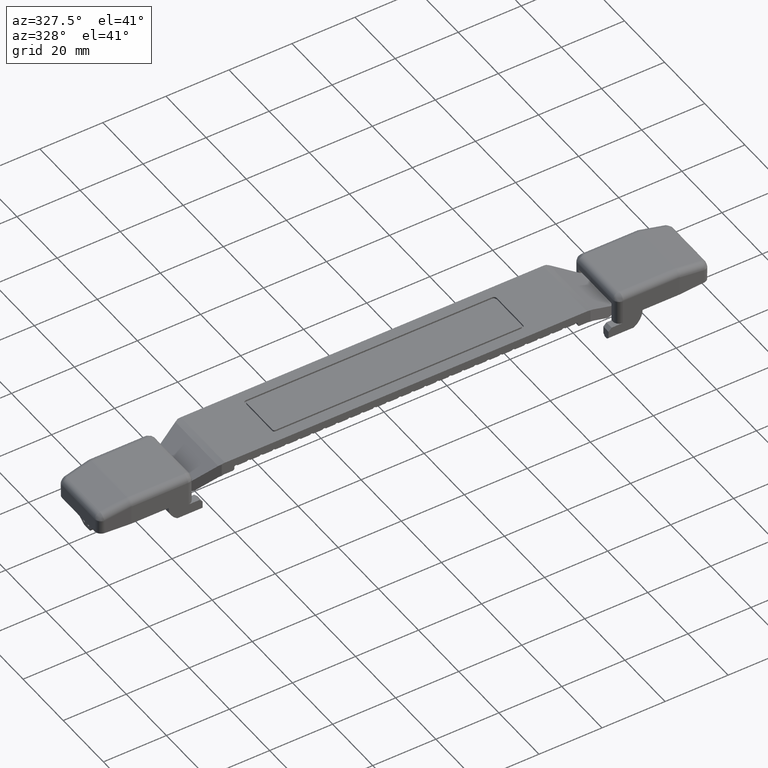
[diagram: clean part render]
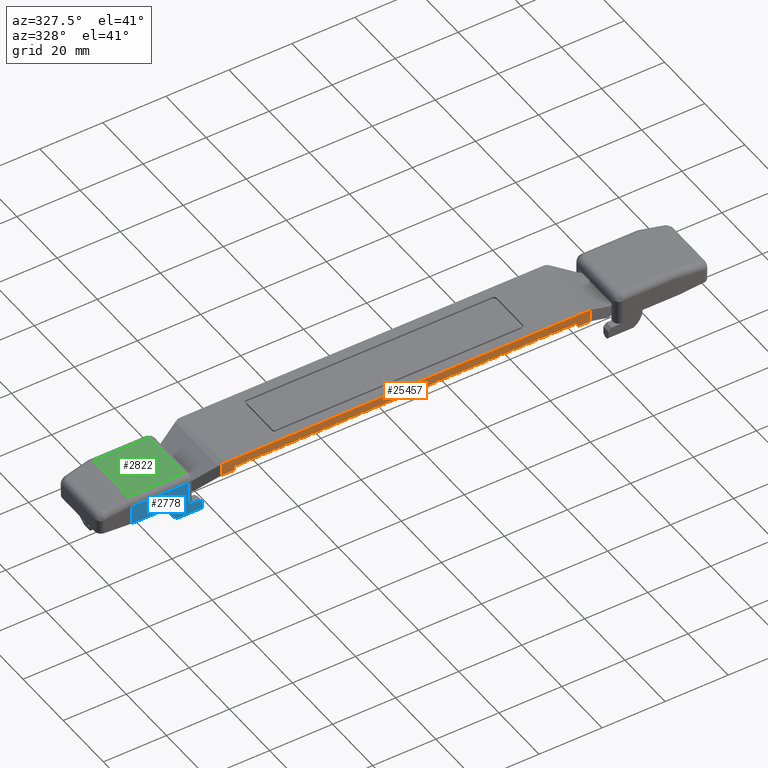
[diagram: same view with three faces highlighted in distinct colors, each labeled with its STEP entity id]
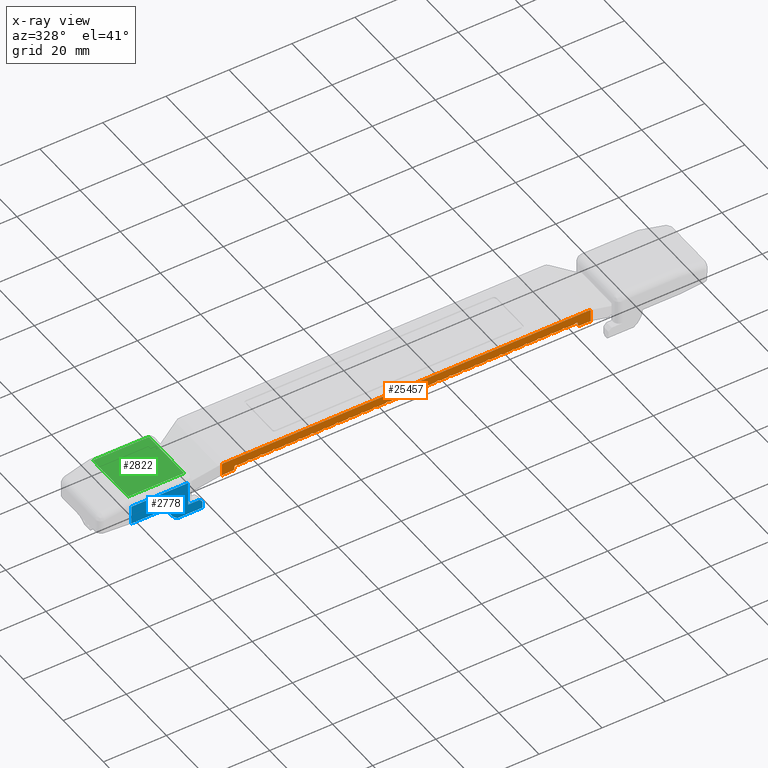
[diagram: x-ray of the same camera — body ghosted, the three highlighted faces saturated]
A machine part, auxiliary view with three faces highlighted in distinct colors.
The next image is the same camera in x-ray (body ghosted, the three faces saturated) — at least one of them is partly hidden behind the body in this view.
Their STEP definitions:

[orange] entity #25457 — the highlighted face is a freeform B-spline surface patch.
#3698=CARTESIAN_POINT('',(-58.499235837876000,-11.0,7.863364469087560));
#3699=VERTEX_POINT('',#3698);
#3713=CARTESIAN_POINT('',(-57.462695930785500,-11.0,8.0));
#3714=VERTEX_POINT('',#3713);
#3715=CARTESIAN_POINT('',(-57.462695930785500,-11.0,7.999999999999915));
#3716=CARTESIAN_POINT('',(-57.989971455741930,-10.999999999999996,7.999999999999915));
#3717=CARTESIAN_POINT('',(-58.499235837876000,-11.0,7.863364469087554));
#3725=(BOUNDED_CURVE()B_SPLINE_CURVE(2,(#3715,#3716,#3717),.UNSPECIFIED.,.F.,.U.)CURVE()GEOMETRIC_REPRESENTATION_ITEM()QUASI_UNIFORM_CURVE()RATIONAL_B_SPLINE_CURVE((1.0,0.991423501151730,1.0))REPRESENTATION_ITEM(''));
#3726=EDGE_CURVE('',#3714,#3699,#3725,.T.);
#3782=CARTESIAN_POINT('',(57.462295916517803,-11.0,8.0));
#3783=VERTEX_POINT('',#3782);
#3789=CARTESIAN_POINT('',(58.499235837876000,-11.0,7.863257123140139));
#3790=VERTEX_POINT('',#3789);
#3791=CARTESIAN_POINT('',(58.499235837876000,-11.0,7.863257123140135));
#3792=CARTESIAN_POINT('',(57.989782124901687,-11.000000000000002,7.999999999999915));
#3793=CARTESIAN_POINT('',(57.462295916517803,-11.0,7.999999999999915));
#3801=(BOUNDED_CURVE()B_SPLINE_CURVE(2,(#3791,#3792,#3793),.UNSPECIFIED.,.F.,.U.)CURVE()GEOMETRIC_REPRESENTATION_ITEM()QUASI_UNIFORM_CURVE()RATIONAL_B_SPLINE_CURVE((1.0,0.991416733968379,1.0))REPRESENTATION_ITEM(''));
#3802=EDGE_CURVE('',#3790,#3783,#3801,.T.);
#3873=CARTESIAN_POINT('',(-57.462695958633603,-11.0,3.999999999999915));
#3874=VERTEX_POINT('',#3873);
#3880=CARTESIAN_POINT('',(-58.499235837876000,-11.0,3.863364476559180));
#3881=VERTEX_POINT('',#3880);
#3882=CARTESIAN_POINT('',(-58.499235837876007,-11.0,3.863364476559191));
#3883=CARTESIAN_POINT('',(-57.989971468923031,-11.000000000000002,3.999999999999916));
#3884=CARTESIAN_POINT('',(-57.462695958633603,-11.0,3.999999999999915));
#3892=(BOUNDED_CURVE()B_SPLINE_CURVE(2,(#3882,#3883,#3884),.UNSPECIFIED.,.F.,.U.)CURVE()GEOMETRIC_REPRESENTATION_ITEM()QUASI_UNIFORM_CURVE()RATIONAL_B_SPLINE_CURVE((1.0,0.991423501622747,1.0))REPRESENTATION_ITEM(''));
#3893=EDGE_CURVE('',#3881,#3874,#3892,.T.);
#3971=CARTESIAN_POINT('',(58.499235837876000,-11.0,3.863257151883565));
#3972=VERTEX_POINT('',#3971);
#3986=CARTESIAN_POINT('',(57.462296023605212,-11.0,3.999999999999915));
#3987=VERTEX_POINT('',#3986);
#3988=CARTESIAN_POINT('',(57.462296023605212,-11.0,3.999999999999915));
#3989=CARTESIAN_POINT('',(57.989782175586079,-11.000000000000002,3.999999999999916));
#3990=CARTESIAN_POINT('',(58.499235837875993,-11.0,3.863257151883550));
#3998=(BOUNDED_CURVE()B_SPLINE_CURVE(2,(#3988,#3989,#3990),.UNSPECIFIED.,.F.,.U.)CURVE()GEOMETRIC_REPRESENTATION_ITEM()QUASI_UNIFORM_CURVE()RATIONAL_B_SPLINE_CURVE((1.0,0.991416735780395,1.0))REPRESENTATION_ITEM(''));
#3999=EDGE_CURVE('',#3987,#3972,#3998,.T.);
#4123=CARTESIAN_POINT('',(58.499235837876000,-11.0,3.863257151883565));
#4124=CARTESIAN_POINT('',(58.499235837876000,-11.0,7.863257123140139));
#4125=QUASI_UNIFORM_CURVE('',1,(#4123,#4124),.UNSPECIFIED.,.F.,.U.);
#4126=EDGE_CURVE('',#3972,#3790,#4125,.T.);
#4151=CARTESIAN_POINT('',(-58.499235837876000,-11.0,7.863364469087560));
#4152=CARTESIAN_POINT('',(-58.499235837876000,-11.0,3.863364476559180));
#4153=QUASI_UNIFORM_CURVE('',1,(#4151,#4152),.UNSPECIFIED.,.F.,.U.);
#4154=EDGE_CURVE('',#3699,#3881,#4153,.T.);
#4283=CARTESIAN_POINT('',(55.0,-11.0,3.999999999999915));
#4284=VERTEX_POINT('',#4283);
#4290=CARTESIAN_POINT('',(54.500000000000000,-11.0,4.499999999999915));
#4291=VERTEX_POINT('',#4290);
#4292=CARTESIAN_POINT('',(54.500000000000000,-11.0,4.499999999999915));
#4293=CARTESIAN_POINT('',(54.500000000000014,-11.0,3.999999999999915));
#4294=CARTESIAN_POINT('',(55.0,-11.0,3.999999999999915));
#4302=(BOUNDED_CURVE()B_SPLINE_CURVE(2,(#4292,#4293,#4294),.UNSPECIFIED.,.F.,.U.)CURVE()GEOMETRIC_REPRESENTATION_ITEM()QUASI_UNIFORM_CURVE()RATIONAL_B_SPLINE_CURVE((1.0,0.707106781186548,1.0))REPRESENTATION_ITEM(''));
#4303=EDGE_CURVE('',#4291,#4284,#4302,.T.);
#4388=CARTESIAN_POINT('',(-49.298588283777903,-11.0,5.225006406971120));
#4389=VERTEX_POINT('',#4388);
#4405=CARTESIAN_POINT('',(-49.662433412363697,-11.0,5.368847934671580));
#4406=VERTEX_POINT('',#4405);
#4407=CARTESIAN_POINT('',(-49.662433412363697,-11.0,5.368847934671580));
#4408=CARTESIAN_POINT('',(-49.637594849984040,-11.0,5.346115887244618));
#4409=CARTESIAN_POINT('',(-49.611110804692629,-11.0,5.325953764448160));
#4410=CARTESIAN_POINT('',(-49.554959648183591,-11.0,5.290600849438986));
#4411=CARTESIAN_POINT('',(-49.525134044049828,-11.0,5.275346410726440));
#4412=CARTESIAN_POINT('',(-49.462740345101857,-11.0,5.250462376695269));
#4413=CARTESIAN_POINT('',(-49.430857207096963,-11.0,5.241072570032348));
#4414=CARTESIAN_POINT('',(-49.365730328358033,-11.0,5.228344122577686));
#4415=CARTESIAN_POINT('',(-49.332288296134912,-11.0,5.225006406971941));
#4416=CARTESIAN_POINT('',(-49.298588283777903,-11.0,5.225006406971111));
#4417=B_SPLINE_CURVE_WITH_KNOTS('',3,(#4407,#4408,#4409,#4410,#4411,#4412,#4413,#4414,#4415,#4416),.UNSPECIFIED.,.F.,.U.,(4,2,2,2,4),(0.0,0.250000000000000,0.500000000000000,0.750000000000000,1.0),.UNSPECIFIED.);
#4418=EDGE_CURVE('',#4406,#4389,#4417,.T.);
#4858=CARTESIAN_POINT('',(-50.701411716222097,-11.0,5.225006406971120));
#4859=VERTEX_POINT('',#4858);
#4860=CARTESIAN_POINT('',(-50.337566587636402,-11.0,5.368847934671580));
#4861=VERTEX_POINT('',#4860);
#4862=CARTESIAN_POINT('',(-50.701411716222204,-11.0,5.225006406971120));
#4863=CARTESIAN_POINT('',(-50.633988217408991,-11.0,5.225006406971104));
#4864=CARTESIAN_POINT('',(-50.569051868542729,-11.000000000000011,5.237839615230326));
#4865=CARTESIAN_POINT('',(-50.475157663928798,-11.0,5.275201986854873));
#4866=CARTESIAN_POINT('',(-50.445471212529668,-11.0,5.290359137141497));
#4867=CARTESIAN_POINT('',(-50.389159769338512,-11.0,5.325754217592063));
#4868=CARTESIAN_POINT('',(-50.362411059978548,-11.0,5.346110478498451));
#4869=CARTESIAN_POINT('',(-50.337566587636402,-11.0,5.368847934671580));
#4870=B_SPLINE_CURVE_WITH_KNOTS('',3,(#4862,#4863,#4864,#4865,#4866,#4867,#4868,#4869),.UNSPECIFIED.,.F.,.U.,(4,2,2,4),(0.0,0.500000000000001,0.750000000000001,1.0),.UNSPECIFIED.);
#4871=EDGE_CURVE('',#4859,#4861,#4870,.T.);
#5154=CARTESIAN_POINT('',(-33.662433412363747,-11.0,5.368847934671580));
#5155=VERTEX_POINT('',#5154);
#5156=CARTESIAN_POINT('',(-33.298588283777953,-11.0,5.225006406971120));
#5157=VERTEX_POINT('',#5156);
#5158=CARTESIAN_POINT('',(-33.662433412363747,-11.0,5.368847934671580));
#5159=CARTESIAN_POINT('',(-33.637594849984083,-11.0,5.346115887244617));
#5160=CARTESIAN_POINT('',(-33.611110804692657,-11.0,5.325953764448186));
#5161=CARTESIAN_POINT('',(-33.554959648183619,-11.0,5.290600849439008));
#5162=CARTESIAN_POINT('',(-33.525134044049857,-11.0,5.275346410726458));
#5163=CARTESIAN_POINT('',(-33.462740345101899,-11.0,5.250462376695277));
#5164=CARTESIAN_POINT('',(-33.430857207097013,-11.0,5.241072570032357));
#5165=CARTESIAN_POINT('',(-33.365730328358083,-11.0,5.228344122577691));
#5166=CARTESIAN_POINT('',(-33.332288296134962,-11.0,5.225006406971953));
#5167=CARTESIAN_POINT('',(-33.298588283777953,-11.0,5.225006406971120));
#5168=B_SPLINE_CURVE_WITH_KNOTS('',3,(#5158,#5159,#5160,#5161,#5162,#5163,#5164,#5165,#5166,#5167),.UNSPECIFIED.,.F.,.U.,(4,2,2,2,4),(0.0,0.250000000000000,0.500000000000000,0.750000000000000,1.0),.UNSPECIFIED.);
#5169=EDGE_CURVE('',#5155,#5157,#5168,.T.);
#5452=CARTESIAN_POINT('',(-37.662433412363647,-11.0,5.368847934671580));
#5453=VERTEX_POINT('',#5452);
#5454=CARTESIAN_POINT('',(-37.298588283777853,-11.0,5.225006406971120));
#5455=VERTEX_POINT('',#5454);
#5456=CARTESIAN_POINT('',(-37.662433412363647,-11.0,5.368847934671580));
#5457=CARTESIAN_POINT('',(-37.637594849983991,-11.0,5.346115887244621));
#5458=CARTESIAN_POINT('',(-37.611110804692593,-11.0,5.325953764448141));
#5459=CARTESIAN_POINT('',(-37.554959648183569,-11.0,5.290600849438971));
#5460=CARTESIAN_POINT('',(-37.525134044049778,-11.0,5.275346410726423));
#5461=CARTESIAN_POINT('',(-37.462740345101821,-11.0,5.250462376695255));
#5462=CARTESIAN_POINT('',(-37.430857207096928,-11.0,5.241072570032334));
#5463=CARTESIAN_POINT('',(-37.365730328357991,-11.0,5.228344122577677));
#5464=CARTESIAN_POINT('',(-37.332288296134912,-11.0,5.225006406971939));
#5465=CARTESIAN_POINT('',(-37.298588283777903,-11.0,5.225006406971111));
#5466=B_SPLINE_CURVE_WITH_KNOTS('',3,(#5456,#5457,#5458,#5459,#5460,#5461,#5462,#5463,#5464,#5465),.UNSPECIFIED.,.F.,.U.,(4,2,2,2,4),(0.0,0.250000000000000,0.500000000000000,0.750000000000000,1.0),.UNSPECIFIED.);
#5467=EDGE_CURVE('',#5453,#5455,#5466,.T.);
#5750=CARTESIAN_POINT('',(-34.701411716222204,-11.0,5.225006406971120));
#5751=VERTEX_POINT('',#5750);
#5752=CARTESIAN_POINT('',(-34.337566587636452,-11.0,5.368847934671580));
#5753=VERTEX_POINT('',#5752);
#5754=CARTESIAN_POINT('',(-34.701411716222253,-11.0,5.225006406971111));
#5755=CARTESIAN_POINT('',(-34.633988217408998,-11.0,5.225006406971086));
#5756=CARTESIAN_POINT('',(-34.569051868542793,-11.0,5.237839615230308));
#5757=CARTESIAN_POINT('',(-34.475157663928847,-11.0,5.275201986854850));
#5758=CARTESIAN_POINT('',(-34.445471212529696,-11.0,5.290359137141468));
#5759=CARTESIAN_POINT('',(-34.389159769338548,-11.0,5.325754217592032));
#5760=CARTESIAN_POINT('',(-34.362411059978577,-11.0,5.346110478498450));
#5761=CARTESIAN_POINT('',(-34.337566587636452,-11.0,5.368847934671580));
#5762=B_SPLINE_CURVE_WITH_KNOTS('',3,(#5754,#5755,#5756,#5757,#5758,#5759,#5760,#5761),.UNSPECIFIED.,.F.,.U.,(4,2,2,4),(0.0,0.500000000000024,0.750000000000012,1.0),.UNSPECIFIED.);
#5763=EDGE_CURVE('',#5751,#5753,#5762,.T.);
#6046=CARTESIAN_POINT('',(-41.662433412363647,-11.0,5.368847934671580));
#6047=VERTEX_POINT('',#6046);
#6048=CARTESIAN_POINT('',(-41.298588283777853,-11.0,5.225006406971120));
#6049=VERTEX_POINT('',#6048);
#6050=CARTESIAN_POINT('',(-41.662433412363647,-11.0,5.368847934671580));
#6051=CARTESIAN_POINT('',(-41.637594849983977,-11.0,5.346115887244621));
#6052=CARTESIAN_POINT('',(-41.611110804692601,-11.0,5.325953764448137));
#6053=CARTESIAN_POINT('',(-41.554959648183562,-11.0,5.290600849438968));
#6054=CARTESIAN_POINT('',(-41.525134044049793,-11.0,5.275346410726421));
#6055=CARTESIAN_POINT('',(-41.462740345101800,-11.0,5.250462376695255));
#6056=CARTESIAN_POINT('',(-41.430857207096928,-11.0,5.241072570032334));
#6057=CARTESIAN_POINT('',(-41.365730328357991,-11.0,5.228344122577677));
#6058=CARTESIAN_POINT('',(-41.332288296134912,-11.0,5.225006406971939));
#6059=CARTESIAN_POINT('',(-41.298588283777903,-11.0,5.225006406971111));
#6060=B_SPLINE_CURVE_WITH_KNOTS('',3,(#6050,#6051,#6052,#6053,#6054,#6055,#6056,#6057,#6058,#6059),.UNSPECIFIED.,.F.,.U.,(4,2,2,2,4),(0.0,0.250000000000000,0.500000000000000,0.750000000000000,1.0),.UNSPECIFIED.);
#6061=EDGE_CURVE('',#6047,#6049,#6060,.T.);
#6344=CARTESIAN_POINT('',(-38.701411716222204,-11.0,5.225006406971120));
#6345=VERTEX_POINT('',#6344);
#6346=CARTESIAN_POINT('',(-38.337566587636353,-11.0,5.368847934671580));
#6347=VERTEX_POINT('',#6346);
#6348=CARTESIAN_POINT('',(-38.701411716222147,-11.0,5.225006406971120));
#6349=CARTESIAN_POINT('',(-38.633988217408898,-11.0,5.225006406971111));
#6350=CARTESIAN_POINT('',(-38.569051868542701,-11.0,5.237839615230326));
#6351=CARTESIAN_POINT('',(-38.475157663928769,-11.0,5.275201986854883));
#6352=CARTESIAN_POINT('',(-38.445471212529633,-11.0,5.290359137141503));
#6353=CARTESIAN_POINT('',(-38.389159769338491,-11.0,5.325754217592078));
#6354=CARTESIAN_POINT('',(-38.362411059978477,-11.0,5.346110478498447));
#6355=CARTESIAN_POINT('',(-38.337566587636353,-11.0,5.368847934671580));
#6356=B_SPLINE_CURVE_WITH_KNOTS('',3,(#6348,#6349,#6350,#6351,#6352,#6353,#6354,#6355),.UNSPECIFIED.,.F.,.U.,(4,2,2,4),(0.0,0.500000000000025,0.750000000000013,1.0),.UNSPECIFIED.);
#6357=EDGE_CURVE('',#6345,#6347,#6356,.T.);
#6451=CARTESIAN_POINT('',(-42.701411716222097,-11.0,5.225006406971120));
#6452=VERTEX_POINT('',#6451);
#6453=CARTESIAN_POINT('',(-42.337566587636353,-11.0,5.368847934671580));
#6454=VERTEX_POINT('',#6453);
#6455=CARTESIAN_POINT('',(-42.701411716222147,-11.0,5.225006406971120));
#6456=CARTESIAN_POINT('',(-42.633988217408913,-11.0,5.225006406971110));
#6457=CARTESIAN_POINT('',(-42.569051868542701,-11.0,5.237839615230329));
#6458=CARTESIAN_POINT('',(-42.475157663928769,-11.0,5.275201986854887));
#6459=CARTESIAN_POINT('',(-42.445471212529640,-11.0,5.290359137141508));
#6460=CARTESIAN_POINT('',(-42.389159769338477,-11.0,5.325754217592080));
#6461=CARTESIAN_POINT('',(-42.362411059978527,-11.0,5.346110478498450));
#6462=CARTESIAN_POINT('',(-42.337566587636353,-11.0,5.368847934671580));
#6463=B_SPLINE_CURVE_WITH_KNOTS('',3,(#6455,#6456,#6457,#6458,#6459,#6460,#6461,#6462),.UNSPECIFIED.,.F.,.U.,(4,2,2,4),(0.0,0.499999999999976,0.749999999999988,1.0),.UNSPECIFIED.);
#6464=EDGE_CURVE('',#6452,#6454,#6463,.T.);
#6936=CARTESIAN_POINT('',(-45.662433412363697,-11.0,5.368847934671580));
#6937=VERTEX_POINT('',#6936);
#6938=CARTESIAN_POINT('',(-45.298588283777903,-11.0,5.225006406971120));
#6939=VERTEX_POINT('',#6938);
#6940=CARTESIAN_POINT('',(-45.662433412363697,-11.0,5.368847934671580));
#6941=CARTESIAN_POINT('',(-45.637594849984040,-11.0,5.346115887244618));
#6942=CARTESIAN_POINT('',(-45.611110804692629,-11.0,5.325953764448165));
#6943=CARTESIAN_POINT('',(-45.554959648183598,-11.0,5.290600849438990));
#6944=CARTESIAN_POINT('',(-45.525134044049807,-11.0,5.275346410726447));
#6945=CARTESIAN_POINT('',(-45.462740345101857,-11.0,5.250462376695272));
#6946=CARTESIAN_POINT('',(-45.430857207096977,-11.0,5.241072570032349));
#6947=CARTESIAN_POINT('',(-45.365730328358033,-11.0,5.228344122577687));
#6948=CARTESIAN_POINT('',(-45.332288296134912,-11.0,5.225006406971940));
#6949=CARTESIAN_POINT('',(-45.298588283777903,-11.0,5.225006406971111));
#6950=B_SPLINE_CURVE_WITH_KNOTS('',3,(#6940,#6941,#6942,#6943,#6944,#6945,#6946,#6947,#6948,#6949),.UNSPECIFIED.,.F.,.U.,(4,2,2,2,4),(0.0,0.250000000000000,0.500000000000000,0.750000000000000,1.0),.UNSPECIFIED.);
#6951=EDGE_CURVE('',#6937,#6939,#6950,.T.);
#7045=CARTESIAN_POINT('',(-46.701411716222097,-11.0,5.225006406971120));
#7046=VERTEX_POINT('',#7045);
#7047=CARTESIAN_POINT('',(-46.337566587636402,-11.0,5.368847934671580));
#7048=VERTEX_POINT('',#7047);
#7049=CARTESIAN_POINT('',(-46.701411716222204,-11.0,5.225006406971120));
#7050=CARTESIAN_POINT('',(-46.633988217408969,-11.0,5.225006406971104));
#7051=CARTESIAN_POINT('',(-46.569051868542722,-11.0,5.237839615230321));
#7052=CARTESIAN_POINT('',(-46.475157663928798,-11.0,5.275201986854871));
#7053=CARTESIAN_POINT('',(-46.445471212529647,-11.0,5.290359137141492));
#7054=CARTESIAN_POINT('',(-46.389159769338512,-11.0,5.325754217592057));
#7055=CARTESIAN_POINT('',(-46.362411059978541,-11.0,5.346110478498451));
#7056=CARTESIAN_POINT('',(-46.337566587636402,-11.0,5.368847934671580));
#7057=B_SPLINE_CURVE_WITH_KNOTS('',3,(#7049,#7050,#7051,#7052,#7053,#7054,#7055,#7056),.UNSPECIFIED.,.F.,.U.,(4,2,2,4),(0.0,0.500000000000000,0.750000000000000,1.0),.UNSPECIFIED.);
#7058=EDGE_CURVE('',#7046,#7048,#7057,.T.);
#7530=CARTESIAN_POINT('',(-30.701411716222200,-11.0,5.225006406971120));
#7531=VERTEX_POINT('',#7530);
#7532=CARTESIAN_POINT('',(-30.337566587636349,-11.0,5.368847934671580));
#7533=VERTEX_POINT('',#7532);
#7534=CARTESIAN_POINT('',(-30.701411716222150,-11.0,5.225006406971120));
#7535=CARTESIAN_POINT('',(-30.633988217408909,-11.0,5.225006406971110));
#7536=CARTESIAN_POINT('',(-30.569051868542712,-11.0,5.237839615230325));
#7537=CARTESIAN_POINT('',(-30.475157663928769,-11.0,5.275201986854881));
#7538=CARTESIAN_POINT('',(-30.445471212529629,-11.0,5.290359137141505));
#7539=CARTESIAN_POINT('',(-30.389159769338480,-11.0,5.325754217592078));
#7540=CARTESIAN_POINT('',(-30.362411059978481,-11.0,5.346110478498446));
#7541=CARTESIAN_POINT('',(-30.337566587636349,-11.0,5.368847934671580));
#7542=B_SPLINE_CURVE_WITH_KNOTS('',3,(#7534,#7535,#7536,#7537,#7538,#7539,#7540,#7541),.UNSPECIFIED.,.F.,.U.,(4,2,2,4),(0.0,0.500000000000012,0.750000000000006,1.0),.UNSPECIFIED.);
#7543=EDGE_CURVE('',#7531,#7533,#7542,.T.);
#7637=CARTESIAN_POINT('',(-26.701411716222200,-11.0,5.225006406971120));
#7638=VERTEX_POINT('',#7637);
#7639=CARTESIAN_POINT('',(-26.337566587636349,-11.0,5.368847934671580));
#7640=VERTEX_POINT('',#7639);
#7641=CARTESIAN_POINT('',(-26.701411716222150,-11.0,5.225006406971111));
#7642=CARTESIAN_POINT('',(-26.633988217408909,-11.0,5.225006406971099));
#7643=CARTESIAN_POINT('',(-26.569051868542701,-11.0,5.237839615230325));
#7644=CARTESIAN_POINT('',(-26.475157663928769,-11.0,5.275201986854881));
#7645=CARTESIAN_POINT('',(-26.445471212529640,-11.0,5.290359137141505));
#7646=CARTESIAN_POINT('',(-26.389159769338470,-11.0,5.325754217592076));
#7647=CARTESIAN_POINT('',(-26.362411059978481,-11.0,5.346110478498447));
#7648=CARTESIAN_POINT('',(-26.337566587636349,-11.0,5.368847934671580));
#7649=B_SPLINE_CURVE_WITH_KNOTS('',3,(#7641,#7642,#7643,#7644,#7645,#7646,#7647,#7648),.UNSPECIFIED.,.F.,.U.,(4,2,2,4),(0.0,0.499999999999988,0.749999999999994,1.0),.UNSPECIFIED.);
#7650=EDGE_CURVE('',#7638,#7640,#7649,.T.);
#8122=CARTESIAN_POINT('',(-29.662433412363651,-11.0,5.368847934671580));
#8123=VERTEX_POINT('',#8122);
#8124=CARTESIAN_POINT('',(-29.298588283777850,-11.0,5.225006406971120));
#8125=VERTEX_POINT('',#8124);
#8126=CARTESIAN_POINT('',(-29.662433412363651,-11.0,5.368847934671580));
#8127=CARTESIAN_POINT('',(-29.637594849983980,-11.0,5.346115887244618));
#8128=CARTESIAN_POINT('',(-29.611110804692590,-11.0,5.325953764448138));
#8129=CARTESIAN_POINT('',(-29.554959648183569,-11.0,5.290600849438968));
#8130=CARTESIAN_POINT('',(-29.525134044049778,-11.0,5.275346410726421));
#8131=CARTESIAN_POINT('',(-29.462740345101810,-11.0,5.250462376695255));
#8132=CARTESIAN_POINT('',(-29.430857207096931,-11.0,5.241072570032332));
#8133=CARTESIAN_POINT('',(-29.365730328357980,-11.0,5.228344122577673));
#8134=CARTESIAN_POINT('',(-29.332288296134919,-11.0,5.225006406971950));
#8135=CARTESIAN_POINT('',(-29.298588283777899,-11.0,5.225006406971120));
#8136=B_SPLINE_CURVE_WITH_KNOTS('',3,(#8126,#8127,#8128,#8129,#8130,#8131,#8132,#8133,#8134,#8135),.UNSPECIFIED.,.F.,.U.,(4,2,2,2,4),(0.0,0.250000000000000,0.500000000000000,0.750000000000000,1.0),.UNSPECIFIED.);
#8137=EDGE_CURVE('',#8123,#8125,#8136,.T.);
#8420=CARTESIAN_POINT('',(-25.662433412363651,-11.0,5.368847934671580));
#8421=VERTEX_POINT('',#8420);
#8422=CARTESIAN_POINT('',(-25.298588283777850,-11.0,5.225006406971120));
#8423=VERTEX_POINT('',#8422);
#8424=CARTESIAN_POINT('',(-25.662433412363651,-11.0,5.368847934671580));
#8425=CARTESIAN_POINT('',(-25.637594849983980,-11.0,5.346115887244618));
#8426=CARTESIAN_POINT('',(-25.611110804692590,-11.0,5.325953764448138));
#8427=CARTESIAN_POINT('',(-25.554959648183559,-11.0,5.290600849438968));
#8428=CARTESIAN_POINT('',(-25.525134044049778,-11.0,5.275346410726421));
#8429=CARTESIAN_POINT('',(-25.462740345101810,-11.0,5.250462376695255));
#8430=CARTESIAN_POINT('',(-25.430857207096938,-11.0,5.241072570032332));
#8431=CARTESIAN_POINT('',(-25.365730328357980,-11.0,5.228344122577673));
#8432=CARTESIAN_POINT('',(-25.332288296134909,-11.0,5.225006406971950));
#8433=CARTESIAN_POINT('',(-25.298588283777899,-11.0,5.225006406971120));
#8434=B_SPLINE_CURVE_WITH_KNOTS('',3,(#8424,#8425,#8426,#8427,#8428,#8429,#8430,#8431,#8432,#8433),.UNSPECIFIED.,.F.,.U.,(4,2,2,2,4),(0.0,0.250000000000000,0.500000000000000,0.750000000000000,1.0),.UNSPECIFIED.);
#8435=EDGE_CURVE('',#8421,#8423,#8434,.T.);
#8529=CARTESIAN_POINT('',(-22.701411716222200,-11.0,5.225006406971120));
#8530=VERTEX_POINT('',#8529);
#8531=CARTESIAN_POINT('',(-22.337566587636349,-11.0,5.368847934671580));
#8532=VERTEX_POINT('',#8531);
#8533=CARTESIAN_POINT('',(-22.701411716222150,-11.0,5.225006406971120));
#8534=CARTESIAN_POINT('',(-22.633988217408909,-11.0,5.225006406971110));
#8535=CARTESIAN_POINT('',(-22.569051868542701,-11.0,5.237839615230325));
#8536=CARTESIAN_POINT('',(-22.475157663928769,-11.0,5.275201986854881));
#8537=CARTESIAN_POINT('',(-22.445471212529629,-11.0,5.290359137141503));
#8538=CARTESIAN_POINT('',(-22.389159769338480,-11.0,5.325754217592078));
#8539=CARTESIAN_POINT('',(-22.362411059978481,-11.0,5.346110478498447));
#8540=CARTESIAN_POINT('',(-22.337566587636349,-11.0,5.368847934671580));
#8541=B_SPLINE_CURVE_WITH_KNOTS('',3,(#8533,#8534,#8535,#8536,#8537,#8538,#8539,#8540),.UNSPECIFIED.,.F.,.U.,(4,2,2,4),(0.0,0.500000000000012,0.750000000000006,1.0),.UNSPECIFIED.);
#8542=EDGE_CURVE('',#8530,#8532,#8541,.T.);
#8825=CARTESIAN_POINT('',(-18.701411716222200,-11.0,5.225006406971120));
#8826=VERTEX_POINT('',#8825);
#8827=CARTESIAN_POINT('',(-18.337566587636349,-11.0,5.368847934671580));
#8828=VERTEX_POINT('',#8827);
#8829=CARTESIAN_POINT('',(-18.701411716222150,-11.0,5.225006406971120));
#8830=CARTESIAN_POINT('',(-18.633988217408909,-11.0,5.225006406971110));
#8831=CARTESIAN_POINT('',(-18.569051868542701,-11.0,5.237839615230325));
#8832=CARTESIAN_POINT('',(-18.475157663928769,-11.0,5.275201986854882));
#8833=CARTESIAN_POINT('',(-18.445471212529640,-11.0,5.290359137141505));
#8834=CARTESIAN_POINT('',(-18.389159769338480,-11.0,5.325754217592077));
#8835=CARTESIAN_POINT('',(-18.362411059978481,-11.0,5.346110478498447));
#8836=CARTESIAN_POINT('',(-18.337566587636349,-11.0,5.368847934671580));
#8837=B_SPLINE_CURVE_WITH_KNOTS('',3,(#8829,#8830,#8831,#8832,#8833,#8834,#8835,#8836),.UNSPECIFIED.,.F.,.U.,(4,2,2,4),(0.0,0.499999999999999,0.749999999999999,1.0),.UNSPECIFIED.);
#8838=EDGE_CURVE('',#8826,#8828,#8837,.T.);
#9138=CARTESIAN_POINT('',(-21.298588283777850,-11.0,5.225006406971120));
#9139=VERTEX_POINT('',#9138);
#9155=CARTESIAN_POINT('',(-21.662433412363651,-11.0,5.368847934671580));
#9156=VERTEX_POINT('',#9155);
#9157=CARTESIAN_POINT('',(-21.662433412363651,-11.0,5.368847934671580));
#9158=CARTESIAN_POINT('',(-21.637594849983991,-11.0,5.346115887244618));
#9159=CARTESIAN_POINT('',(-21.611110804692579,-11.0,5.325953764448138));
#9160=CARTESIAN_POINT('',(-21.554959648183559,-11.0,5.290600849438968));
#9161=CARTESIAN_POINT('',(-21.525134044049778,-11.0,5.275346410726421));
#9162=CARTESIAN_POINT('',(-21.462740345101810,-11.0,5.250462376695253));
#9163=CARTESIAN_POINT('',(-21.430857207096931,-11.0,5.241072570032332));
#9164=CARTESIAN_POINT('',(-21.365730328357980,-11.0,5.228344122577677));
#9165=CARTESIAN_POINT('',(-21.332288296134859,-11.0,5.225006406971946));
#9166=CARTESIAN_POINT('',(-21.298588283777850,-11.0,5.225006406971120));
#9167=B_SPLINE_CURVE_WITH_KNOTS('',3,(#9157,#9158,#9159,#9160,#9161,#9162,#9163,#9164,#9165,#9166),.UNSPECIFIED.,.F.,.U.,(4,2,2,2,4),(0.0,0.250000000000000,0.500000000000000,0.750000000000000,1.0),.UNSPECIFIED.);
#9168=EDGE_CURVE('',#9156,#9139,#9167,.T.);
#9608=CARTESIAN_POINT('',(-17.662433412363651,-11.0,5.368847934671580));
#9609=VERTEX_POINT('',#9608);
#9610=CARTESIAN_POINT('',(-17.298588283777850,-11.0,5.225006406971120));
#9611=VERTEX_POINT('',#9610);
#9612=CARTESIAN_POINT('',(-17.662433412363651,-11.0,5.368847934671580));
#9613=CARTESIAN_POINT('',(-17.637594849983991,-11.0,5.346115887244619));
#9614=CARTESIAN_POINT('',(-17.611110804692579,-11.0,5.325953764448141));
#9615=CARTESIAN_POINT('',(-17.554959648183569,-11.0,5.290600849438968));
#9616=CARTESIAN_POINT('',(-17.525134044049778,-11.0,5.275346410726425));
#9617=CARTESIAN_POINT('',(-17.462740345101810,-11.0,5.250462376695256));
#9618=CARTESIAN_POINT('',(-17.430857207096931,-11.0,5.241072570032329));
#9619=CARTESIAN_POINT('',(-17.365730328357980,-11.0,5.228344122577673));
#9620=CARTESIAN_POINT('',(-17.332288296134909,-11.0,5.225006406971950));
#9621=CARTESIAN_POINT('',(-17.298588283777899,-11.0,5.225006406971120));
#9622=B_SPLINE_CURVE_WITH_KNOTS('',3,(#9612,#9613,#9614,#9615,#9616,#9617,#9618,#9619,#9620,#9621),.UNSPECIFIED.,.F.,.U.,(4,2,2,2,4),(0.0,0.250000000000000,0.500000000000000,0.750000000000000,1.0),.UNSPECIFIED.);
#9623=EDGE_CURVE('',#9609,#9611,#9622,.T.);
#9906=CARTESIAN_POINT('',(-14.701411716222200,-11.0,5.225006406971120));
#9907=VERTEX_POINT('',#9906);
#9908=CARTESIAN_POINT('',(-14.337566587636360,-11.0,5.368847934671580));
#9909=VERTEX_POINT('',#9908);
#9910=CARTESIAN_POINT('',(-14.701411716222200,-11.0,5.225006406971120));
#9911=CARTESIAN_POINT('',(-14.633988217408911,-11.0,5.225006406971113));
#9912=CARTESIAN_POINT('',(-14.569051868542701,-11.000000000000011,5.237839615230331));
#9913=CARTESIAN_POINT('',(-14.475157663928760,-11.0,5.275201986854883));
#9914=CARTESIAN_POINT('',(-14.445471212529640,-11.0,5.290359137141506));
#9915=CARTESIAN_POINT('',(-14.389159769338480,-11.0,5.325754217592076));
#9916=CARTESIAN_POINT('',(-14.362411059978500,-11.0,5.346110478498448));
#9917=CARTESIAN_POINT('',(-14.337566587636360,-11.0,5.368847934671580));
#9918=B_SPLINE_CURVE_WITH_KNOTS('',3,(#9910,#9911,#9912,#9913,#9914,#9915,#9916,#9917),.UNSPECIFIED.,.F.,.U.,(4,2,2,4),(0.0,0.499999999999995,0.749999999999998,1.0),.UNSPECIFIED.);
#9919=EDGE_CURVE('',#9907,#9909,#9918,.T.);
#10013=CARTESIAN_POINT('',(-10.701411716222299,-11.0,5.225006406971120));
#10014=VERTEX_POINT('',#10013);
#10015=CARTESIAN_POINT('',(-10.337566587636440,-11.0,5.368847934671580));
#10016=VERTEX_POINT('',#10015);
#10017=CARTESIAN_POINT('',(-10.701411716222299,-11.0,5.225006406971120));
#10018=CARTESIAN_POINT('',(-10.633988217409000,-11.0,5.225006406971096));
#10019=CARTESIAN_POINT('',(-10.569051868542770,-11.0,5.237839615230304));
#10020=CARTESIAN_POINT('',(-10.475157663928840,-11.0,5.275201986854849));
#10021=CARTESIAN_POINT('',(-10.445471212529700,-11.0,5.290359137141472));
#10022=CARTESIAN_POINT('',(-10.389159769338530,-11.0,5.325754217592035));
#10023=CARTESIAN_POINT('',(-10.362411059978569,-11.0,5.346110478498452));
#10024=CARTESIAN_POINT('',(-10.337566587636440,-11.0,5.368847934671580));
#10025=B_SPLINE_CURVE_WITH_KNOTS('',3,(#10017,#10018,#10019,#10020,#10021,#10022,#10023,#10024),.UNSPECIFIED.,.F.,.U.,(4,2,2,4),(0.0,0.499999999999999,0.749999999999999,1.0),.UNSPECIFIED.);
#10026=EDGE_CURVE('',#10014,#10016,#10025,.T.);
#10498=CARTESIAN_POINT('',(-13.662433412363660,-11.0,5.368847934671580));
#10499=VERTEX_POINT('',#10498);
#10500=CARTESIAN_POINT('',(-13.298588283777841,-11.0,5.225006406971120));
#10501=VERTEX_POINT('',#10500);
#10502=CARTESIAN_POINT('',(-13.662433412363660,-11.0,5.368847934671580));
#10503=CARTESIAN_POINT('',(-13.637594849983991,-11.0,5.346115887244619));
#10504=CARTESIAN_POINT('',(-13.611110804692590,-11.0,5.325953764448141));
#10505=CARTESIAN_POINT('',(-13.554959648183560,-11.0,5.290600849438969));
#10506=CARTESIAN_POINT('',(-13.525134044049780,-11.0,5.275346410726423));
#10507=CARTESIAN_POINT('',(-13.462740345101800,-11.0,5.250462376695253));
#10508=CARTESIAN_POINT('',(-13.430857207096929,-11.0,5.241072570032332));
#10509=CARTESIAN_POINT('',(-13.365730328357980,-11.0,5.228344122577674));
#10510=CARTESIAN_POINT('',(-13.332288296134889,-11.0,5.225006406971947));
#10511=CARTESIAN_POINT('',(-13.298588283777880,-11.0,5.225006406971120));
#10512=B_SPLINE_CURVE_WITH_KNOTS('',3,(#10502,#10503,#10504,#10505,#10506,#10507,#10508,#10509,#10510,#10511),.UNSPECIFIED.,.F.,.U.,(4,2,2,2,4),(0.0,0.250000000000000,0.500000000000000,0.750000000000000,1.0),.UNSPECIFIED.);
#10513=EDGE_CURVE('',#10499,#10501,#10512,.T.);
#10796=CARTESIAN_POINT('',(-9.662433412363750,-11.0,5.368847934671580));
#10797=VERTEX_POINT('',#10796);
#10798=CARTESIAN_POINT('',(-9.298588283777940,-11.0,5.225006406971120));
#10799=VERTEX_POINT('',#10798);
#10800=CARTESIAN_POINT('',(-9.662433412363750,-11.0,5.368847934671580));
#10801=CARTESIAN_POINT('',(-9.637594849984090,-11.0,5.346115887244613));
#10802=CARTESIAN_POINT('',(-9.611110804692647,-11.0,5.325953764448187));
#10803=CARTESIAN_POINT('',(-9.554959648183628,-11.0,5.290600849439004));
#10804=CARTESIAN_POINT('',(-9.525134044049862,-11.0,5.275346410726460));
#10805=CARTESIAN_POINT('',(-9.462740345101890,-11.0,5.250462376695281));
#10806=CARTESIAN_POINT('',(-9.430857207097017,-11.0,5.241072570032353));
#10807=CARTESIAN_POINT('',(-9.365730328358071,-11.0,5.228344122577687));
#10808=CARTESIAN_POINT('',(-9.332288296134973,-11.0,5.225006406971953));
#10809=CARTESIAN_POINT('',(-9.298588283777962,-11.0,5.225006406971120));
#10810=B_SPLINE_CURVE_WITH_KNOTS('',3,(#10800,#10801,#10802,#10803,#10804,#10805,#10806,#10807,#10808,#10809),.UNSPECIFIED.,.F.,.U.,(4,2,2,2,4),(0.0,0.250000000000000,0.500000000000000,0.750000000000000,1.0),.UNSPECIFIED.);
#10811=EDGE_CURVE('',#10797,#10799,#10810,.T.);
#10905=CARTESIAN_POINT('',(-6.701411716222290,-11.0,5.225006406971120));
#10906=VERTEX_POINT('',#10905);
#10907=CARTESIAN_POINT('',(-6.337566587636450,-11.0,5.368847934671580));
#10908=VERTEX_POINT('',#10907);
#10909=CARTESIAN_POINT('',(-6.701411716222250,-11.0,5.225006406971120));
#10910=CARTESIAN_POINT('',(-6.633988217409007,-11.0,5.225006406971110));
#10911=CARTESIAN_POINT('',(-6.569051868542807,-11.0,5.237839615230326));
#10912=CARTESIAN_POINT('',(-6.475157663928869,-11.0,5.275201986854883));
#10913=CARTESIAN_POINT('',(-6.445471212529741,-11.0,5.290359137141503));
#10914=CARTESIAN_POINT('',(-6.389159769338574,-11.0,5.325754217592077));
#10915=CARTESIAN_POINT('',(-6.362411059978581,-11.0,5.346110478498443));
#10916=CARTESIAN_POINT('',(-6.337566587636450,-11.0,5.368847934671580));
#10917=B_SPLINE_CURVE_WITH_KNOTS('',3,(#10909,#10910,#10911,#10912,#10913,#10914,#10915,#10916),.UNSPECIFIED.,.F.,.U.,(4,2,2,4),(0.0,0.500000000000003,0.750000000000001,1.0),.UNSPECIFIED.);
#10918=EDGE_CURVE('',#10906,#10908,#10917,.T.);
#11201=CARTESIAN_POINT('',(-2.701411716222290,-11.0,5.225006406971120));
#11202=VERTEX_POINT('',#11201);
#11203=CARTESIAN_POINT('',(-2.337566587636450,-11.0,5.368847934671580));
#11204=VERTEX_POINT('',#11203);
#11205=CARTESIAN_POINT('',(-2.701411716222290,-11.0,5.225006406971120));
#11206=CARTESIAN_POINT('',(-2.633988217409003,-11.0,5.225006406971109));
#11207=CARTESIAN_POINT('',(-2.569051868542800,-11.0,5.237839615230325));
#11208=CARTESIAN_POINT('',(-2.475157663928865,-11.0,5.275201986854882));
#11209=CARTESIAN_POINT('',(-2.445471212529738,-11.0,5.290359137141504));
#11210=CARTESIAN_POINT('',(-2.389159769338576,-11.0,5.325754217592076));
#11211=CARTESIAN_POINT('',(-2.362411059978588,-11.0,5.346110478498448));
#11212=CARTESIAN_POINT('',(-2.337566587636450,-11.0,5.368847934671580));
#11213=B_SPLINE_CURVE_WITH_KNOTS('',3,(#11205,#11206,#11207,#11208,#11209,#11210,#11211,#11212),.UNSPECIFIED.,.F.,.U.,(4,2,2,4),(0.0,0.500000000000001,0.750000000000001,1.0),.UNSPECIFIED.);
#11214=EDGE_CURVE('',#11202,#11204,#11213,.T.);
#11686=CARTESIAN_POINT('',(-5.662433412363749,-11.0,5.368847934671580));
#11687=VERTEX_POINT('',#11686);
#11688=CARTESIAN_POINT('',(-5.298588283777939,-11.0,5.225006406971120));
#11689=VERTEX_POINT('',#11688);
#11690=CARTESIAN_POINT('',(-5.662433412363749,-11.0,5.368847934671580));
#11691=CARTESIAN_POINT('',(-5.637594849984083,-11.0,5.346115887244618));
#11692=CARTESIAN_POINT('',(-5.611110804692681,-11.0,5.325953764448137));
#11693=CARTESIAN_POINT('',(-5.554959648183661,-11.0,5.290600849438964));
#11694=CARTESIAN_POINT('',(-5.525134044049875,-11.0,5.275346410726423));
#11695=CARTESIAN_POINT('',(-5.462740345101900,-11.0,5.250462376695256));
#11696=CARTESIAN_POINT('',(-5.430857207097023,-11.0,5.241072570032328));
#11697=CARTESIAN_POINT('',(-5.365730328358076,-11.0,5.228344122577671));
#11698=CARTESIAN_POINT('',(-5.332288296134981,-11.0,5.225006406971947));
#11699=CARTESIAN_POINT('',(-5.298588283777970,-11.0,5.225006406971120));
#11700=B_SPLINE_CURVE_WITH_KNOTS('',3,(#11690,#11691,#11692,#11693,#11694,#11695,#11696,#11697,#11698,#11699),.UNSPECIFIED.,.F.,.U.,(4,2,2,2,4),(0.0,0.250000000000000,0.500000000000000,0.750000000000000,1.0),.UNSPECIFIED.);
#11701=EDGE_CURVE('',#11687,#11689,#11700,.T.);
#11984=CARTESIAN_POINT('',(-1.662433412363750,-11.0,5.368847934671580));
#11985=VERTEX_POINT('',#11984);
#11986=CARTESIAN_POINT('',(-1.298588283777934,-11.0,5.225006406971120));
#11987=VERTEX_POINT('',#11986);
#11988=CARTESIAN_POINT('',(-1.662433412363750,-11.0,5.368847934671580));
#11989=CARTESIAN_POINT('',(-1.637594849984082,-11.0,5.346115887244618));
#11990=CARTESIAN_POINT('',(-1.611110804692680,-11.0,5.325953764448137));
#11991=CARTESIAN_POINT('',(-1.554959648183659,-11.0,5.290600849438966));
#11992=CARTESIAN_POINT('',(-1.525134044049873,-11.0,5.275346410726422));
#11993=CARTESIAN_POINT('',(-1.462740345101897,-11.0,5.250462376695253));
#11994=CARTESIAN_POINT('',(-1.430857207097021,-11.0,5.241072570032328));
#11995=CARTESIAN_POINT('',(-1.365730328358072,-11.0,5.228344122577676));
#11996=CARTESIAN_POINT('',(-1.332288296134974,-11.0,5.225006406971938));
#11997=CARTESIAN_POINT('',(-1.298588283777962,-11.0,5.225006406971111));
#11998=B_SPLINE_CURVE_WITH_KNOTS('',3,(#11988,#11989,#11990,#11991,#11992,#11993,#11994,#11995,#11996,#11997),.UNSPECIFIED.,.F.,.U.,(4,2,2,2,4),(0.0,0.250000000000000,0.500000000000000,0.750000000000000,1.0),.UNSPECIFIED.);
#11999=EDGE_CURVE('',#11985,#11987,#11998,.T.);
#12093=CARTESIAN_POINT('',(1.298588283777934,-11.0,5.225006406971120));
#12094=VERTEX_POINT('',#12093);
#12095=CARTESIAN_POINT('',(1.662433412363750,-11.0,5.368847934671580));
#12096=VERTEX_POINT('',#12095);
#12097=CARTESIAN_POINT('',(1.298588283777950,-11.0,5.225006406971111));
#12098=CARTESIAN_POINT('',(1.366011782591200,-11.0,5.225006406971100));
#12099=CARTESIAN_POINT('',(1.430948131457376,-11.0,5.237839615230322));
#12100=CARTESIAN_POINT('',(1.524842336071321,-11.0,5.275201986854878));
#12101=CARTESIAN_POINT('',(1.554528787470451,-11.0,5.290359137141500));
#12102=CARTESIAN_POINT('',(1.610840230661619,-11.0,5.325754217592074));
#12103=CARTESIAN_POINT('',(1.637588940021610,-11.0,5.346110478498443));
#12104=CARTESIAN_POINT('',(1.662433412363750,-11.0,5.368847934671580));
#12105=B_SPLINE_CURVE_WITH_KNOTS('',3,(#12097,#12098,#12099,#12100,#12101,#12102,#12103,#12104),.UNSPECIFIED.,.F.,.U.,(4,2,2,4),(0.0,0.500000000000000,0.750000000000000,1.0),.UNSPECIFIED.);
#12106=EDGE_CURVE('',#12094,#12096,#12105,.T.);
#12389=CARTESIAN_POINT('',(5.298588283777939,-11.0,5.225006406971120));
#12390=VERTEX_POINT('',#12389);
#12391=CARTESIAN_POINT('',(5.662433412363749,-11.0,5.368847934671580));
#12392=VERTEX_POINT('',#12391);
#12393=CARTESIAN_POINT('',(5.298588283777959,-11.0,5.225006406971120));
#12394=CARTESIAN_POINT('',(5.366011782591206,-11.0,5.225006406971112));
#12395=CARTESIAN_POINT('',(5.430948131457387,-11.0,5.237839615230323));
#12396=CARTESIAN_POINT('',(5.524842336071329,-11.0,5.275201986854881));
#12397=CARTESIAN_POINT('',(5.554528787470456,-11.0,5.290359137141501));
#12398=CARTESIAN_POINT('',(5.610840230661621,-11.0,5.325754217592074));
#12399=CARTESIAN_POINT('',(5.637588940021604,-11.0,5.346110478498445));
#12400=CARTESIAN_POINT('',(5.662433412363749,-11.0,5.368847934671580));
#12401=B_SPLINE_CURVE_WITH_KNOTS('',3,(#12393,#12394,#12395,#12396,#12397,#12398,#12399,#12400),.UNSPECIFIED.,.F.,.U.,(4,2,2,4),(0.0,0.500000000000003,0.750000000000001,1.0),.UNSPECIFIED.);
#12402=EDGE_CURVE('',#12390,#12392,#12401,.T.);
#12765=CARTESIAN_POINT('',(2.337566587636445,-11.0,5.368847934671580));
#12766=VERTEX_POINT('',#12765);
#12767=CARTESIAN_POINT('',(2.701411716222180,-11.0,5.225006406971120));
#12768=VERTEX_POINT('',#12767);
#12769=CARTESIAN_POINT('',(2.337566587636445,-11.0,5.368847934671580));
#12770=CARTESIAN_POINT('',(2.362405150016109,-11.0,5.346115887244625));
#12771=CARTESIAN_POINT('',(2.388889195307508,-11.0,5.325953764448148));
#12772=CARTESIAN_POINT('',(2.445040351816516,-11.0,5.290600849438981));
#12773=CARTESIAN_POINT('',(2.474865955950290,-11.0,5.275346410726436));
#12774=CARTESIAN_POINT('',(2.537259654898253,-11.0,5.250462376695267));
#12775=CARTESIAN_POINT('',(2.569142792903125,-11.0,5.241072570032349));
#12776=CARTESIAN_POINT('',(2.634269671642060,-11.0,5.228344122577687));
#12777=CARTESIAN_POINT('',(2.667711703865230,-11.0,5.225006406971948));
#12778=CARTESIAN_POINT('',(2.701411716222180,-11.0,5.225006406971120));
#12779=B_SPLINE_CURVE_WITH_KNOTS('',3,(#12769,#12770,#12771,#12772,#12773,#12774,#12775,#12776,#12777,#12778),.UNSPECIFIED.,.F.,.U.,(4,2,2,2,4),(0.0,0.250000000000000,0.500000000000000,0.750000000000000,1.0),.UNSPECIFIED.);
#12780=EDGE_CURVE('',#12766,#12768,#12779,.T.);
#13172=CARTESIAN_POINT('',(6.337566587636450,-11.0,5.368847934671580));
#13173=VERTEX_POINT('',#13172);
#13174=CARTESIAN_POINT('',(6.701411716222180,-11.0,5.225006406971120));
#13175=VERTEX_POINT('',#13174);
#13176=CARTESIAN_POINT('',(6.337566587636450,-11.0,5.368847934671580));
#13177=CARTESIAN_POINT('',(6.362405150016112,-11.0,5.346115887244625));
#13178=CARTESIAN_POINT('',(6.388889195307510,-11.0,5.325953764448146));
#13179=CARTESIAN_POINT('',(6.445040351816516,-11.0,5.290600849438981));
#13180=CARTESIAN_POINT('',(6.474865955950292,-11.0,5.275346410726433));
#13181=CARTESIAN_POINT('',(6.537259654898254,-11.0,5.250462376695262));
#13182=CARTESIAN_POINT('',(6.569142792903124,-11.0,5.241072570032348));
#13183=CARTESIAN_POINT('',(6.634269671642061,-11.0,5.228344122577687));
#13184=CARTESIAN_POINT('',(6.667711703865225,-11.0,5.225006406971948));
#13185=CARTESIAN_POINT('',(6.701411716222180,-11.0,5.225006406971120));
#13186=B_SPLINE_CURVE_WITH_KNOTS('',3,(#13176,#13177,#13178,#13179,#13180,#13181,#13182,#13183,#13184,#13185),.UNSPECIFIED.,.F.,.U.,(4,2,2,2,4),(0.0,0.250000000000000,0.500000000000000,0.750000000000000,1.0),.UNSPECIFIED.);
#13187=EDGE_CURVE('',#13173,#13175,#13186,.T.);
#13470=CARTESIAN_POINT('',(9.298588283777940,-11.0,5.225006406971120));
#13471=VERTEX_POINT('',#13470);
#13472=CARTESIAN_POINT('',(9.662433412363750,-11.0,5.368847934671580));
#13473=VERTEX_POINT('',#13472);
#13474=CARTESIAN_POINT('',(9.298588283777962,-11.0,5.225006406971120));
#13475=CARTESIAN_POINT('',(9.366011782591201,-11.0,5.225006406971125));
#13476=CARTESIAN_POINT('',(9.430948131457379,-11.000000000000011,5.237839615230348));
#13477=CARTESIAN_POINT('',(9.524842336071314,-11.0,5.275201986854921));
#13478=CARTESIAN_POINT('',(9.554528787470430,-11.0,5.290359137141542));
#13479=CARTESIAN_POINT('',(9.610840230661589,-11.0,5.325754217592126));
#13480=CARTESIAN_POINT('',(9.637588940021606,-11.0,5.346110478498441));
#13481=CARTESIAN_POINT('',(9.662433412363750,-11.0,5.368847934671580));
#13482=B_SPLINE_CURVE_WITH_KNOTS('',3,(#13474,#13475,#13476,#13477,#13478,#13479,#13480,#13481),.UNSPECIFIED.,.F.,.U.,(4,2,2,4),(0.0,0.499999999999993,0.749999999999996,1.0),.UNSPECIFIED.);
#13483=EDGE_CURVE('',#13471,#13473,#13482,.T.);
#13577=CARTESIAN_POINT('',(13.298588283777841,-11.0,5.225006406971120));
#13578=VERTEX_POINT('',#13577);
#13579=CARTESIAN_POINT('',(13.662433412363660,-11.0,5.368847934671580));
#13580=VERTEX_POINT('',#13579);
#13581=CARTESIAN_POINT('',(13.298588283777880,-11.0,5.225006406971120));
#13582=CARTESIAN_POINT('',(13.366011782591119,-11.0,5.225006406971111));
#13583=CARTESIAN_POINT('',(13.430948131457320,-11.0,5.237839615230330));
#13584=CARTESIAN_POINT('',(13.524842336071250,-11.0,5.275201986854890));
#13585=CARTESIAN_POINT('',(13.554528787470369,-11.0,5.290359137141509));
#13586=CARTESIAN_POINT('',(13.610840230661539,-11.0,5.325754217592085));
#13587=CARTESIAN_POINT('',(13.637588940021530,-11.0,5.346110478498447));
#13588=CARTESIAN_POINT('',(13.662433412363660,-11.0,5.368847934671580));
#13589=B_SPLINE_CURVE_WITH_KNOTS('',3,(#13581,#13582,#13583,#13584,#13585,#13586,#13587,#13588),.UNSPECIFIED.,.F.,.U.,(4,2,2,4),(0.0,0.500000000000000,0.750000000000000,1.0),.UNSPECIFIED.);
#13590=EDGE_CURVE('',#13578,#13580,#13589,.T.);
#13953=CARTESIAN_POINT('',(10.337566587636440,-11.0,5.368847934671580));
#13954=VERTEX_POINT('',#13953);
#13955=CARTESIAN_POINT('',(10.701411716222200,-11.0,5.225006406971120));
#13956=VERTEX_POINT('',#13955);
#13957=CARTESIAN_POINT('',(10.337566587636440,-11.0,5.368847934671580));
#13958=CARTESIAN_POINT('',(10.362405150016111,-11.0,5.346115887244626));
#13959=CARTESIAN_POINT('',(10.388889195307479,-11.0,5.325953764448101));
#13960=CARTESIAN_POINT('',(10.445040351816489,-11.0,5.290600849438942));
#13961=CARTESIAN_POINT('',(10.474865955950280,-11.0,5.275346410726391));
#13962=CARTESIAN_POINT('',(10.537259654898250,-11.0,5.250462376695234));
#13963=CARTESIAN_POINT('',(10.569142792903129,-11.0,5.241072570032319));
#13964=CARTESIAN_POINT('',(10.634269671642070,-11.0,5.228344122577671));
#13965=CARTESIAN_POINT('',(10.667711703865210,-11.0,5.225006406971940));
#13966=CARTESIAN_POINT('',(10.701411716222220,-11.0,5.225006406971120));
#13967=B_SPLINE_CURVE_WITH_KNOTS('',3,(#13957,#13958,#13959,#13960,#13961,#13962,#13963,#13964,#13965,#13966),.UNSPECIFIED.,.F.,.U.,(4,2,2,2,4),(0.0,0.250000000000000,0.500000000000000,0.750000000000000,1.0),.UNSPECIFIED.);
#13968=EDGE_CURVE('',#13954,#13956,#13967,.T.);
#14360=CARTESIAN_POINT('',(14.337566587636360,-11.0,5.368847934671580));
#14361=VERTEX_POINT('',#14360);
#14362=CARTESIAN_POINT('',(14.701411716222200,-11.0,5.225006406971120));
#14363=VERTEX_POINT('',#14362);
#14364=CARTESIAN_POINT('',(14.337566587636360,-11.0,5.368847934671580));
#14365=CARTESIAN_POINT('',(14.362405150016031,-11.0,5.346115887244618));
#14366=CARTESIAN_POINT('',(14.388889195307430,-11.0,5.325953764448129));
#14367=CARTESIAN_POINT('',(14.445040351816459,-11.0,5.290600849438959));
#14368=CARTESIAN_POINT('',(14.474865955950239,-11.0,5.275346410726412));
#14369=CARTESIAN_POINT('',(14.537259654898230,-11.0,5.250462376695246));
#14370=CARTESIAN_POINT('',(14.569142792903101,-11.0,5.241072570032325));
#14371=CARTESIAN_POINT('',(14.634269671642061,-11.0,5.228344122577673));
#14372=CARTESIAN_POINT('',(14.667711703865130,-11.0,5.225006406971946));
#14373=CARTESIAN_POINT('',(14.701411716222200,-11.0,5.225006406971120));
#14374=B_SPLINE_CURVE_WITH_KNOTS('',3,(#14364,#14365,#14366,#14367,#14368,#14369,#14370,#14371,#14372,#14373),.UNSPECIFIED.,.F.,.U.,(4,2,2,2,4),(0.0,0.250000000000000,0.500000000000000,0.750000000000000,1.0),.UNSPECIFIED.);
#14375=EDGE_CURVE('',#14361,#14363,#14374,.T.);
#14469=CARTESIAN_POINT('',(17.298588283777850,-11.0,5.225006406971120));
#14470=VERTEX_POINT('',#14469);
#14471=CARTESIAN_POINT('',(17.662433412363651,-11.0,5.368847934671580));
#14472=VERTEX_POINT('',#14471);
#14473=CARTESIAN_POINT('',(17.298588283777850,-11.0,5.225006406971120));
#14474=CARTESIAN_POINT('',(17.366011782591102,-11.0,5.225006406971110));
#14475=CARTESIAN_POINT('',(17.430948131457271,-11.0,5.237839615230319));
#14476=CARTESIAN_POINT('',(17.524842336071220,-11.0,5.275201986854878));
#14477=CARTESIAN_POINT('',(17.554528787470350,-11.0,5.290359137141499));
#14478=CARTESIAN_POINT('',(17.610840230661520,-11.0,5.325754217592075));
#14479=CARTESIAN_POINT('',(17.637588940021519,-11.0,5.346110478498445));
#14480=CARTESIAN_POINT('',(17.662433412363651,-11.0,5.368847934671580));
#14481=B_SPLINE_CURVE_WITH_KNOTS('',3,(#14473,#14474,#14475,#14476,#14477,#14478,#14479,#14480),.UNSPECIFIED.,.F.,.U.,(4,2,2,4),(0.0,0.500000000000001,0.750000000000001,1.0),.UNSPECIFIED.);
#14482=EDGE_CURVE('',#14470,#14472,#14481,.T.);
#14954=CARTESIAN_POINT('',(18.337566587636349,-11.0,5.368847934671580));
#14955=VERTEX_POINT('',#14954);
#14956=CARTESIAN_POINT('',(18.701411716222200,-11.0,5.225006406971120));
#14957=VERTEX_POINT('',#14956);
#14958=CARTESIAN_POINT('',(18.337566587636349,-11.0,5.368847934671580));
#14959=CARTESIAN_POINT('',(18.362405150016020,-11.0,5.346115887244618));
#14960=CARTESIAN_POINT('',(18.388889195307431,-11.0,5.325953764448132));
#14961=CARTESIAN_POINT('',(18.445040351816449,-11.0,5.290600849438959));
#14962=CARTESIAN_POINT('',(18.474865955950239,-11.0,5.275346410726415));
#14963=CARTESIAN_POINT('',(18.537259654898211,-11.0,5.250462376695249));
#14964=CARTESIAN_POINT('',(18.569142792903101,-11.0,5.241072570032324));
#14965=CARTESIAN_POINT('',(18.634269671642059,-11.0,5.228344122577670));
#14966=CARTESIAN_POINT('',(18.667711703865130,-11.0,5.225006406971946));
#14967=CARTESIAN_POINT('',(18.701411716222200,-11.0,5.225006406971120));
#14968=B_SPLINE_CURVE_WITH_KNOTS('',3,(#14958,#14959,#14960,#14961,#14962,#14963,#14964,#14965,#14966,#14967),.UNSPECIFIED.,.F.,.U.,(4,2,2,2,4),(0.0,0.250000000000000,0.500000000000000,0.750000000000000,1.0),.UNSPECIFIED.);
#14969=EDGE_CURVE('',#14955,#14957,#14968,.T.);
#15252=CARTESIAN_POINT('',(21.298588283777850,-11.0,5.225006406971120));
#15253=VERTEX_POINT('',#15252);
#15254=CARTESIAN_POINT('',(21.662433412363651,-11.0,5.368847934671580));
#15255=VERTEX_POINT('',#15254);
#15256=CARTESIAN_POINT('',(21.298588283777850,-11.0,5.225006406971120));
#15257=CARTESIAN_POINT('',(21.366011782591102,-11.0,5.225006406971109));
#15258=CARTESIAN_POINT('',(21.430948131457260,-11.0,5.237839615230318));
#15259=CARTESIAN_POINT('',(21.524842336071220,-11.0,5.275201986854875));
#15260=CARTESIAN_POINT('',(21.554528787470339,-11.0,5.290359137141499));
#15261=CARTESIAN_POINT('',(21.610840230661520,-11.0,5.325754217592076));
#15262=CARTESIAN_POINT('',(21.637588940021509,-11.0,5.346110478498443));
#15263=CARTESIAN_POINT('',(21.662433412363651,-11.0,5.368847934671580));
#15264=B_SPLINE_CURVE_WITH_KNOTS('',3,(#15256,#15257,#15258,#15259,#15260,#15261,#15262,#15263),.UNSPECIFIED.,.F.,.U.,(4,2,2,4),(0.0,0.500000000000000,0.750000000000000,1.0),.UNSPECIFIED.);
#15265=EDGE_CURVE('',#15253,#15255,#15264,.T.);
#15548=CARTESIAN_POINT('',(22.337566587636349,-11.0,5.368847934671580));
#15549=VERTEX_POINT('',#15548);
#15550=CARTESIAN_POINT('',(22.701411716222200,-11.0,5.225006406971120));
#15551=VERTEX_POINT('',#15550);
#15552=CARTESIAN_POINT('',(22.337566587636349,-11.0,5.368847934671580));
#15553=CARTESIAN_POINT('',(22.362405150016020,-11.0,5.346115887244618));
#15554=CARTESIAN_POINT('',(22.388889195307421,-11.0,5.325953764448132));
#15555=CARTESIAN_POINT('',(22.445040351816449,-11.0,5.290600849438959));
#15556=CARTESIAN_POINT('',(22.474865955950239,-11.0,5.275346410726415));
#15557=CARTESIAN_POINT('',(22.537259654898229,-11.0,5.250462376695249));
#15558=CARTESIAN_POINT('',(22.569142792903101,-11.0,5.241072570032324));
#15559=CARTESIAN_POINT('',(22.634269671642059,-11.0,5.228344122577670));
#15560=CARTESIAN_POINT('',(22.667711703865130,-11.0,5.225006406971946));
#15561=CARTESIAN_POINT('',(22.701411716222150,-11.0,5.225006406971120));
#15562=B_SPLINE_CURVE_WITH_KNOTS('',3,(#15552,#15553,#15554,#15555,#15556,#15557,#15558,#15559,#15560,#15561),.UNSPECIFIED.,.F.,.U.,(4,2,2,2,4),(0.0,0.250000000000000,0.500000000000000,0.750000000000000,1.0),.UNSPECIFIED.);
#15563=EDGE_CURVE('',#15549,#15551,#15562,.T.);
#15846=CARTESIAN_POINT('',(25.298588283777850,-11.0,5.225006406971120));
#15847=VERTEX_POINT('',#15846);
#15848=CARTESIAN_POINT('',(25.662433412363651,-11.0,5.368847934671580));
#15849=VERTEX_POINT('',#15848);
#15850=CARTESIAN_POINT('',(25.298588283777899,-11.0,5.225006406971120));
#15851=CARTESIAN_POINT('',(25.366011782591130,-11.0,5.225006406971116));
#15852=CARTESIAN_POINT('',(25.430948131457338,-11.0,5.237839615230340));
#15853=CARTESIAN_POINT('',(25.524842336071259,-11.0,5.275201986854896));
#15854=CARTESIAN_POINT('',(25.554528787470371,-11.0,5.290359137141512));
#15855=CARTESIAN_POINT('',(25.610840230661530,-11.0,5.325754217592085));
#15856=CARTESIAN_POINT('',(25.637588940021530,-11.0,5.346110478498449));
#15857=CARTESIAN_POINT('',(25.662433412363651,-11.0,5.368847934671580));
#15858=B_SPLINE_CURVE_WITH_KNOTS('',3,(#15850,#15851,#15852,#15853,#15854,#15855,#15856,#15857),.UNSPECIFIED.,.F.,.U.,(4,2,2,4),(0.0,0.500000000000012,0.750000000000006,1.0),.UNSPECIFIED.);
#15859=EDGE_CURVE('',#15847,#15849,#15858,.T.);
#15953=CARTESIAN_POINT('',(29.298588283777850,-11.0,5.225006406971120));
#15954=VERTEX_POINT('',#15953);
#15955=CARTESIAN_POINT('',(29.662433412363651,-11.0,5.368847934671580));
#15956=VERTEX_POINT('',#15955);
#15957=CARTESIAN_POINT('',(29.298588283777850,-11.0,5.225006406971120));
#15958=CARTESIAN_POINT('',(29.366011782591102,-11.0,5.225006406971109));
#15959=CARTESIAN_POINT('',(29.430948131457249,-11.0,5.237839615230318));
#15960=CARTESIAN_POINT('',(29.524842336071220,-11.0,5.275201986854875));
#15961=CARTESIAN_POINT('',(29.554528787470350,-11.0,5.290359137141499));
#15962=CARTESIAN_POINT('',(29.610840230661520,-11.0,5.325754217592076));
#15963=CARTESIAN_POINT('',(29.637588940021519,-11.0,5.346110478498443));
#15964=CARTESIAN_POINT('',(29.662433412363651,-11.0,5.368847934671580));
#15965=B_SPLINE_CURVE_WITH_KNOTS('',3,(#15957,#15958,#15959,#15960,#15961,#15962,#15963,#15964),.UNSPECIFIED.,.F.,.U.,(4,2,2,4),(0.0,0.500000000000000,0.750000000000000,1.0),.UNSPECIFIED.);
#15966=EDGE_CURVE('',#15954,#15956,#15965,.T.);
#16329=CARTESIAN_POINT('',(26.337566587636349,-11.0,5.368847934671580));
#16330=VERTEX_POINT('',#16329);
#16331=CARTESIAN_POINT('',(26.701411716222200,-11.0,5.225006406971120));
#16332=VERTEX_POINT('',#16331);
#16333=CARTESIAN_POINT('',(26.337566587636349,-11.0,5.368847934671580));
#16334=CARTESIAN_POINT('',(26.362405150016020,-11.0,5.346115887244618));
#16335=CARTESIAN_POINT('',(26.388889195307431,-11.0,5.325953764448132));
#16336=CARTESIAN_POINT('',(26.445040351816449,-11.0,5.290600849438959));
#16337=CARTESIAN_POINT('',(26.474865955950239,-11.0,5.275346410726415));
#16338=CARTESIAN_POINT('',(26.537259654898229,-11.0,5.250462376695249));
#16339=CARTESIAN_POINT('',(26.569142792903101,-11.0,5.241072570032324));
#16340=CARTESIAN_POINT('',(26.634269671642048,-11.0,5.228344122577670));
#16341=CARTESIAN_POINT('',(26.667711703865141,-11.0,5.225006406971946));
#16342=CARTESIAN_POINT('',(26.701411716222150,-11.0,5.225006406971120));
#16343=B_SPLINE_CURVE_WITH_KNOTS('',3,(#16333,#16334,#16335,#16336,#16337,#16338,#16339,#16340,#16341,#16342),.UNSPECIFIED.,.F.,.U.,(4,2,2,2,4),(0.0,0.250000000000000,0.500000000000000,0.750000000000000,1.0),.UNSPECIFIED.);
#16344=EDGE_CURVE('',#16330,#16332,#16343,.T.);
#16547=CARTESIAN_POINT('',(33.298588283777953,-11.0,5.225006406971120));
#16548=VERTEX_POINT('',#16547);
#16549=CARTESIAN_POINT('',(33.662433412363747,-11.0,5.368847934671580));
#16550=VERTEX_POINT('',#16549);
#16551=CARTESIAN_POINT('',(33.298588283777953,-11.0,5.225006406971111));
#16552=CARTESIAN_POINT('',(33.366011782591187,-11.0,5.225006406971114));
#16553=CARTESIAN_POINT('',(33.430948131457370,-11.0,5.237839615230344));
#16554=CARTESIAN_POINT('',(33.524842336071302,-11.0,5.275201986854916));
#16555=CARTESIAN_POINT('',(33.554528787470410,-11.0,5.290359137141535));
#16556=CARTESIAN_POINT('',(33.610840230661580,-11.0,5.325754217592120));
#16557=CARTESIAN_POINT('',(33.637588940021608,-11.0,5.346110478498440));
#16558=CARTESIAN_POINT('',(33.662433412363747,-11.0,5.368847934671580));
#16559=B_SPLINE_CURVE_WITH_KNOTS('',3,(#16551,#16552,#16553,#16554,#16555,#16556,#16557,#16558),.UNSPECIFIED.,.F.,.U.,(4,2,2,4),(0.0,0.500000000000024,0.750000000000012,1.0),.UNSPECIFIED.);
#16560=EDGE_CURVE('',#16548,#16550,#16559,.T.);
#16860=CARTESIAN_POINT('',(30.701411716222101,-11.0,5.225006406971120));
#16861=VERTEX_POINT('',#16860);
#16877=CARTESIAN_POINT('',(30.337566587636349,-11.0,5.368847934671580));
#16878=VERTEX_POINT('',#16877);
#16879=CARTESIAN_POINT('',(30.337566587636349,-11.0,5.368847934671580));
#16880=CARTESIAN_POINT('',(30.362405150016020,-11.0,5.346115887244623));
#16881=CARTESIAN_POINT('',(30.388889195307410,-11.0,5.325953764448143));
#16882=CARTESIAN_POINT('',(30.445040351816420,-11.0,5.290600849438977));
#16883=CARTESIAN_POINT('',(30.474865955950200,-11.0,5.275346410726430));
#16884=CARTESIAN_POINT('',(30.537259654898168,-11.0,5.250462376695261));
#16885=CARTESIAN_POINT('',(30.569142792903030,-11.0,5.241072570032339));
#16886=CARTESIAN_POINT('',(30.634269671641970,-11.0,5.228344122577678));
#16887=CARTESIAN_POINT('',(30.667711703865141,-11.0,5.225006406971946));
#16888=CARTESIAN_POINT('',(30.701411716222150,-11.0,5.225006406971120));
#16889=B_SPLINE_CURVE_WITH_KNOTS('',3,(#16879,#16880,#16881,#16882,#16883,#16884,#16885,#16886,#16887,#16888),.UNSPECIFIED.,.F.,.U.,(4,2,2,2,4),(0.0,0.250000000000000,0.500000000000000,0.750000000000000,1.0),.UNSPECIFIED.);
#16890=EDGE_CURVE('',#16878,#16861,#16889,.T.);
#17141=CARTESIAN_POINT('',(37.298588283777853,-11.0,5.225006406971120));
#17142=VERTEX_POINT('',#17141);
#17143=CARTESIAN_POINT('',(37.662433412363647,-11.0,5.368847934671580));
#17144=VERTEX_POINT('',#17143);
#17145=CARTESIAN_POINT('',(37.298588283777903,-11.0,5.225006406971120));
#17146=CARTESIAN_POINT('',(37.366011782591137,-11.0,5.225006406971118));
#17147=CARTESIAN_POINT('',(37.430948131457328,-11.0,5.237839615230342));
#17148=CARTESIAN_POINT('',(37.524842336071259,-11.0,5.275201986854901));
#17149=CARTESIAN_POINT('',(37.554528787470382,-11.0,5.290359137141514));
#17150=CARTESIAN_POINT('',(37.610840230661537,-11.0,5.325754217592084));
#17151=CARTESIAN_POINT('',(37.637588940021523,-11.0,5.346110478498449));
#17152=CARTESIAN_POINT('',(37.662433412363647,-11.0,5.368847934671580));
#17153=B_SPLINE_CURVE_WITH_KNOTS('',3,(#17145,#17146,#17147,#17148,#17149,#17150,#17151,#17152),.UNSPECIFIED.,.F.,.U.,(4,2,2,4),(0.0,0.499999999999999,0.749999999999999,1.0),.UNSPECIFIED.);
#17154=EDGE_CURVE('',#17142,#17144,#17153,.T.);
#17454=CARTESIAN_POINT('',(34.701411716222204,-11.0,5.225006406971120));
#17455=VERTEX_POINT('',#17454);
#17471=CARTESIAN_POINT('',(34.337566587636452,-11.0,5.368847934671580));
#17472=VERTEX_POINT('',#17471);
#17473=CARTESIAN_POINT('',(34.337566587636452,-11.0,5.368847934671580));
#17474=CARTESIAN_POINT('',(34.362405150016123,-11.0,5.346115887244628));
#17475=CARTESIAN_POINT('',(34.388889195307478,-11.0,5.325953764448098));
#17476=CARTESIAN_POINT('',(34.445040351816502,-11.0,5.290600849438940));
#17477=CARTESIAN_POINT('',(34.474865955950293,-11.0,5.275346410726394));
#17478=CARTESIAN_POINT('',(34.537259654898243,-11.0,5.250462376695237));
#17479=CARTESIAN_POINT('',(34.569142792903122,-11.0,5.241072570032320));
#17480=CARTESIAN_POINT('',(34.634269671642073,-11.0,5.228344122577673));
#17481=CARTESIAN_POINT('',(34.667711703865237,-11.0,5.225006406971938));
#17482=CARTESIAN_POINT('',(34.701411716222253,-11.0,5.225006406971120));
#17483=B_SPLINE_CURVE_WITH_KNOTS('',3,(#17473,#17474,#17475,#17476,#17477,#17478,#17479,#17480,#17481,#17482),.UNSPECIFIED.,.F.,.U.,(4,2,2,2,4),(0.0,0.250000000000000,0.500000000000000,0.750000000000000,1.0),.UNSPECIFIED.);
#17484=EDGE_CURVE('',#17472,#17455,#17483,.T.);
#17735=CARTESIAN_POINT('',(41.298588283777853,-11.0,5.225006406971120));
#17736=VERTEX_POINT('',#17735);
#17737=CARTESIAN_POINT('',(41.662433412363647,-11.0,5.368847934671580));
#17738=VERTEX_POINT('',#17737);
#17739=CARTESIAN_POINT('',(41.298588283777903,-11.0,5.225006406971120));
#17740=CARTESIAN_POINT('',(41.366011782591130,-11.0,5.225006406971117));
#17741=CARTESIAN_POINT('',(41.430948131457342,-11.0,5.237839615230342));
#17742=CARTESIAN_POINT('',(41.524842336071252,-11.0,5.275201986854897));
#17743=CARTESIAN_POINT('',(41.554528787470389,-11.0,5.290359137141514));
#17744=CARTESIAN_POINT('',(41.610840230661537,-11.0,5.325754217592083));
#17745=CARTESIAN_POINT('',(41.637588940021523,-11.0,5.346110478498450));
#17746=CARTESIAN_POINT('',(41.662433412363647,-11.0,5.368847934671580));
#17747=B_SPLINE_CURVE_WITH_KNOTS('',3,(#17739,#17740,#17741,#17742,#17743,#17744,#17745,#17746),.UNSPECIFIED.,.F.,.U.,(4,2,2,4),(0.0,0.499999999999999,0.749999999999999,1.0),.UNSPECIFIED.);
#17748=EDGE_CURVE('',#17736,#17738,#17747,.T.);
#18048=CARTESIAN_POINT('',(38.701411716222097,-11.0,5.225006406971120));
#18049=VERTEX_POINT('',#18048);
#18065=CARTESIAN_POINT('',(38.337566587636353,-11.0,5.368847934671580));
#18066=VERTEX_POINT('',#18065);
#18067=CARTESIAN_POINT('',(38.337566587636353,-11.0,5.368847934671580));
#18068=CARTESIAN_POINT('',(38.362405150016023,-11.0,5.346115887244626));
#18069=CARTESIAN_POINT('',(38.388889195307442,-11.0,5.325953764448143));
#18070=CARTESIAN_POINT('',(38.445040351816431,-11.0,5.290600849438975));
#18071=CARTESIAN_POINT('',(38.474865955950207,-11.0,5.275346410726431));
#18072=CARTESIAN_POINT('',(38.537259654898172,-11.0,5.250462376695265));
#18073=CARTESIAN_POINT('',(38.569142792903030,-11.0,5.241072570032343));
#18074=CARTESIAN_POINT('',(38.634269671641981,-11.0,5.228344122577685));
#18075=CARTESIAN_POINT('',(38.667711703865130,-11.0,5.225006406971947));
#18076=CARTESIAN_POINT('',(38.701411716222147,-11.0,5.225006406971120));
#18077=B_SPLINE_CURVE_WITH_KNOTS('',3,(#18067,#18068,#18069,#18070,#18071,#18072,#18073,#18074,#18075,#18076),.UNSPECIFIED.,.F.,.U.,(4,2,2,2,4),(0.0,0.250000000000000,0.500000000000000,0.750000000000000,1.0),.UNSPECIFIED.);
#18078=EDGE_CURVE('',#18066,#18049,#18077,.T.);
#18329=CARTESIAN_POINT('',(45.298588283777903,-11.0,5.225006406971120));
#18330=VERTEX_POINT('',#18329);
#18331=CARTESIAN_POINT('',(45.662433412363697,-11.0,5.368847934671580));
#18332=VERTEX_POINT('',#18331);
#18333=CARTESIAN_POINT('',(45.298588283777903,-11.0,5.225006406971111));
#18334=CARTESIAN_POINT('',(45.366011782591151,-11.0,5.225006406971105));
#18335=CARTESIAN_POINT('',(45.430948131457313,-11.0,5.237839615230336));
#18336=CARTESIAN_POINT('',(45.524842336071274,-11.0,5.275201986854901));
#18337=CARTESIAN_POINT('',(45.554528787470382,-11.0,5.290359137141521));
#18338=CARTESIAN_POINT('',(45.610840230661573,-11.0,5.325754217592102));
#18339=CARTESIAN_POINT('',(45.637588940021558,-11.0,5.346110478498441));
#18340=CARTESIAN_POINT('',(45.662433412363697,-11.0,5.368847934671580));
#18341=B_SPLINE_CURVE_WITH_KNOTS('',3,(#18333,#18334,#18335,#18336,#18337,#18338,#18339,#18340),.UNSPECIFIED.,.F.,.U.,(4,2,2,4),(0.0,0.500000000000000,0.750000000000000,1.0),.UNSPECIFIED.);
#18342=EDGE_CURVE('',#18330,#18332,#18341,.T.);
#18642=CARTESIAN_POINT('',(42.701411716222097,-11.0,5.225006406971120));
#18643=VERTEX_POINT('',#18642);
#18659=CARTESIAN_POINT('',(42.337566587636353,-11.0,5.368847934671580));
#18660=VERTEX_POINT('',#18659);
#18661=CARTESIAN_POINT('',(42.337566587636353,-11.0,5.368847934671580));
#18662=CARTESIAN_POINT('',(42.362405150016009,-11.0,5.346115887244623));
#18663=CARTESIAN_POINT('',(42.388889195307421,-11.0,5.325953764448147));
#18664=CARTESIAN_POINT('',(42.445040351816417,-11.0,5.290600849438978));
#18665=CARTESIAN_POINT('',(42.474865955950193,-11.0,5.275346410726433));
#18666=CARTESIAN_POINT('',(42.537259654898179,-11.0,5.250462376695263));
#18667=CARTESIAN_POINT('',(42.569142792903030,-11.0,5.241072570032338));
#18668=CARTESIAN_POINT('',(42.634269671641988,-11.0,5.228344122577678));
#18669=CARTESIAN_POINT('',(42.667711703865137,-11.0,5.225006406971946));
#18670=CARTESIAN_POINT('',(42.701411716222147,-11.0,5.225006406971120));
#18671=B_SPLINE_CURVE_WITH_KNOTS('',3,(#18661,#18662,#18663,#18664,#18665,#18666,#18667,#18668,#18669,#18670),.UNSPECIFIED.,.F.,.U.,(4,2,2,2,4),(0.0,0.250000000000000,0.500000000000000,0.750000000000000,1.0),.UNSPECIFIED.);
#18672=EDGE_CURVE('',#18660,#18643,#18671,.T.);
#18923=CARTESIAN_POINT('',(49.298588283777903,-11.0,5.225006406971120));
#18924=VERTEX_POINT('',#18923);
#18925=CARTESIAN_POINT('',(49.662433412363697,-11.0,5.368847934671580));
#18926=VERTEX_POINT('',#18925);
#18927=CARTESIAN_POINT('',(49.298588283777903,-11.0,5.225006406971120));
#18928=CARTESIAN_POINT('',(49.366011782591130,-11.0,5.225006406971116));
#18929=CARTESIAN_POINT('',(49.430948131457320,-11.0,5.237839615230328));
#18930=CARTESIAN_POINT('',(49.524842336071281,-11.0,5.275201986854896));
#18931=CARTESIAN_POINT('',(49.554528787470389,-11.0,5.290359137141515));
#18932=CARTESIAN_POINT('',(49.610840230661573,-11.0,5.325754217592096));
#18933=CARTESIAN_POINT('',(49.637588940021573,-11.0,5.346110478498441));
#18934=CARTESIAN_POINT('',(49.662433412363697,-11.0,5.368847934671580));
#18935=B_SPLINE_CURVE_WITH_KNOTS('',3,(#18927,#18928,#18929,#18930,#18931,#18932,#18933,#18934),.UNSPECIFIED.,.F.,.U.,(4,2,2,4),(0.0,0.500000000000000,0.750000000000000,1.0),.UNSPECIFIED.);
#18936=EDGE_CURVE('',#18924,#18926,#18935,.T.);
#19236=CARTESIAN_POINT('',(46.701411716222097,-11.0,5.225006406971120));
#19237=VERTEX_POINT('',#19236);
#19253=CARTESIAN_POINT('',(46.337566587636402,-11.0,5.368847934671580));
#19254=VERTEX_POINT('',#19253);
#19255=CARTESIAN_POINT('',(46.337566587636402,-11.0,5.368847934671580));
#19256=CARTESIAN_POINT('',(46.362405150016080,-11.0,5.346115887244628));
#19257=CARTESIAN_POINT('',(46.388889195307463,-11.0,5.325953764448125));
#19258=CARTESIAN_POINT('',(46.445040351816438,-11.0,5.290600849438963));
#19259=CARTESIAN_POINT('',(46.474865955950229,-11.0,5.275346410726419));
#19260=CARTESIAN_POINT('',(46.537259654898179,-11.0,5.250462376695257));
#19261=CARTESIAN_POINT('',(46.569142792903037,-11.0,5.241072570032337));
#19262=CARTESIAN_POINT('',(46.634269671641967,-11.0,5.228344122577681));
#19263=CARTESIAN_POINT('',(46.667711703865180,-11.0,5.225006406971943));
#19264=CARTESIAN_POINT('',(46.701411716222204,-11.0,5.225006406971120));
#19265=B_SPLINE_CURVE_WITH_KNOTS('',3,(#19255,#19256,#19257,#19258,#19259,#19260,#19261,#19262,#19263,#19264),.UNSPECIFIED.,.F.,.U.,(4,2,2,2,4),(0.0,0.250000000000000,0.500000000000000,0.750000000000000,1.0),.UNSPECIFIED.);
#19266=EDGE_CURVE('',#19254,#19237,#19265,.T.);
#19534=CARTESIAN_POINT('',(53.662433412363612,-11.0,5.368847934671620));
#19535=VERTEX_POINT('',#19534);
#19551=CARTESIAN_POINT('',(53.298588283777796,-11.0,5.225006406971120));
#19552=VERTEX_POINT('',#19551);
#19553=CARTESIAN_POINT('',(53.298588283777796,-11.0,5.225006406971120));
#19554=CARTESIAN_POINT('',(53.366011782591073,-11.0,5.225006406971114));
#19555=CARTESIAN_POINT('',(53.430948131457228,-11.0,5.237839615230329));
#19556=CARTESIAN_POINT('',(53.524842336071167,-11.0,5.275201986854894));
#19557=CARTESIAN_POINT('',(53.554528787470304,-11.0,5.290359137141516));
#19558=CARTESIAN_POINT('',(53.610840230661459,-11.0,5.325754217592100));
#19559=CARTESIAN_POINT('',(53.637588940021452,-11.0,5.346110478498478));
#19560=CARTESIAN_POINT('',(53.662433412363612,-11.0,5.368847934671620));
#19561=B_SPLINE_CURVE_WITH_KNOTS('',3,(#19553,#19554,#19555,#19556,#19557,#19558,#19559,#19560),.UNSPECIFIED.,.F.,.U.,(4,2,2,4),(0.0,0.499999999999999,0.749999999999999,1.0),.UNSPECIFIED.);
#19562=EDGE_CURVE('',#19552,#19535,#19561,.T.);
#19830=CARTESIAN_POINT('',(50.701411716222097,-11.0,5.225006406971120));
#19831=VERTEX_POINT('',#19830);
#19847=CARTESIAN_POINT('',(50.337566587636402,-11.0,5.368847934671580));
#19848=VERTEX_POINT('',#19847);
#19849=CARTESIAN_POINT('',(50.337566587636402,-11.0,5.368847934671580));
#19850=CARTESIAN_POINT('',(50.362405150016073,-11.0,5.346115887244628));
#19851=CARTESIAN_POINT('',(50.388889195307463,-11.0,5.325953764448127));
#19852=CARTESIAN_POINT('',(50.445040351816438,-11.0,5.290600849438967));
#19853=CARTESIAN_POINT('',(50.474865955950207,-11.0,5.275346410726424));
#19854=CARTESIAN_POINT('',(50.537259654898172,-11.0,5.250462376695260));
#19855=CARTESIAN_POINT('',(50.569142792903037,-11.0,5.241072570032340));
#19856=CARTESIAN_POINT('',(50.634269671641967,-11.0,5.228344122577683));
#19857=CARTESIAN_POINT('',(50.667711703865209,-11.0,5.225006406971944));
#19858=CARTESIAN_POINT('',(50.701411716222204,-11.0,5.225006406971120));
#19859=B_SPLINE_CURVE_WITH_KNOTS('',3,(#19849,#19850,#19851,#19852,#19853,#19854,#19855,#19856,#19857,#19858),.UNSPECIFIED.,.F.,.U.,(4,2,2,2,4),(0.0,0.250000000000000,0.500000000000000,0.750000000000000,1.0),.UNSPECIFIED.);
#19860=EDGE_CURVE('',#19848,#19831,#19859,.T.);
#20084=CARTESIAN_POINT('',(-54.500300000000003,-11.0,4.499999999999915));
#20085=VERTEX_POINT('',#20084);
#20091=CARTESIAN_POINT('',(-55.000300000000003,-11.0,3.999999999999915));
#20092=VERTEX_POINT('',#20091);
#20093=CARTESIAN_POINT('',(-55.000300000000003,-11.0,3.999999999999915));
#20094=CARTESIAN_POINT('',(-54.500300000000003,-11.0,3.999999999999915));
#20095=CARTESIAN_POINT('',(-54.500300000000003,-11.0,4.499999999999915));
#20103=(BOUNDED_CURVE()B_SPLINE_CURVE(2,(#20093,#20094,#20095),.UNSPECIFIED.,.F.,.U.)CURVE()GEOMETRIC_REPRESENTATION_ITEM()QUASI_UNIFORM_CURVE()RATIONAL_B_SPLINE_CURVE((1.0,0.707106781186548,1.0))REPRESENTATION_ITEM(''));
#20104=EDGE_CURVE('',#20092,#20085,#20103,.T.);
#20361=CARTESIAN_POINT('',(-53.662433412363796,-11.0,5.368847934671580));
#20362=VERTEX_POINT('',#20361);
#20363=CARTESIAN_POINT('',(-53.298588283778003,-11.0,5.225006406971120));
#20364=VERTEX_POINT('',#20363);
#20365=CARTESIAN_POINT('',(-53.662433412363796,-11.0,5.368847934671580));
#20366=CARTESIAN_POINT('',(-53.637594849984133,-11.0,5.346115887244615));
#20367=CARTESIAN_POINT('',(-53.611110804692693,-11.0,5.325953764448209));
#20368=CARTESIAN_POINT('',(-53.554959648183662,-11.0,5.290600849439025));
#20369=CARTESIAN_POINT('',(-53.525134044049913,-11.0,5.275346410726478));
#20370=CARTESIAN_POINT('',(-53.462740345101942,-11.0,5.250462376695295));
#20371=CARTESIAN_POINT('',(-53.430857207097063,-11.0,5.241072570032366));
#20372=CARTESIAN_POINT('',(-53.365730328358119,-11.0,5.228344122577694));
#20373=CARTESIAN_POINT('',(-53.332288296135012,-11.0,5.225006406971946));
#20374=CARTESIAN_POINT('',(-53.298588283778003,-11.0,5.225006406971111));
#20375=B_SPLINE_CURVE_WITH_KNOTS('',3,(#20365,#20366,#20367,#20368,#20369,#20370,#20371,#20372,#20373,#20374),.UNSPECIFIED.,.F.,.U.,(4,2,2,2,4),(0.0,0.250000000000000,0.500000000000000,0.750000000000000,1.0),.UNSPECIFIED.);
#20376=EDGE_CURVE('',#20362,#20364,#20375,.T.);
#20474=CARTESIAN_POINT('',(-26.337566587636349,-11.0,5.368847934671581));
#20475=CARTESIAN_POINT('',(-25.999999999999996,-11.0,5.677786091502761));
#20476=CARTESIAN_POINT('',(-25.662433412363651,-11.0,5.368847934671581));
#20484=(BOUNDED_CURVE()B_SPLINE_CURVE(2,(#20474,#20475,#20476),.UNSPECIFIED.,.F.,.U.)CURVE()GEOMETRIC_REPRESENTATION_ITEM()QUASI_UNIFORM_CURVE()RATIONAL_B_SPLINE_CURVE((1.0,0.737695869343322,1.0))REPRESENTATION_ITEM(''));
#20485=EDGE_CURVE('',#7640,#8421,#20484,.T.);
#20531=CARTESIAN_POINT('',(-30.337566587636349,-11.0,5.368847934671581));
#20532=CARTESIAN_POINT('',(-30.0,-11.0,5.677786091502761));
#20533=CARTESIAN_POINT('',(-29.662433412363651,-11.0,5.368847934671581));
#20541=(BOUNDED_CURVE()B_SPLINE_CURVE(2,(#20531,#20532,#20533),.UNSPECIFIED.,.F.,.U.)CURVE()GEOMETRIC_REPRESENTATION_ITEM()QUASI_UNIFORM_CURVE()RATIONAL_B_SPLINE_CURVE((1.0,0.737695869343322,1.0))REPRESENTATION_ITEM(''));
#20542=EDGE_CURVE('',#7533,#8123,#20541,.T.);
#20618=CARTESIAN_POINT('',(-34.337566587636402,-11.0,5.368847934671535));
#20619=CARTESIAN_POINT('',(-34.000000000000107,-10.999999999999998,5.677786091502761));
#20620=CARTESIAN_POINT('',(-33.662433412363697,-11.0,5.368847934671628));
#20628=(BOUNDED_CURVE()B_SPLINE_CURVE(2,(#20618,#20619,#20620),.UNSPECIFIED.,.F.,.U.)CURVE()GEOMETRIC_REPRESENTATION_ITEM()QUASI_UNIFORM_CURVE()RATIONAL_B_SPLINE_CURVE((1.0,0.737695869343322,1.0))REPRESENTATION_ITEM(''));
#20629=EDGE_CURVE('',#5753,#5155,#20628,.T.);
#20699=CARTESIAN_POINT('',(-38.337566587636353,-11.0,5.368847934671579));
#20700=CARTESIAN_POINT('',(-38.000000000000007,-11.0,5.677786091502760));
#20701=CARTESIAN_POINT('',(-37.662433412363647,-11.0,5.368847934671583));
#20709=(BOUNDED_CURVE()B_SPLINE_CURVE(2,(#20699,#20700,#20701),.UNSPECIFIED.,.F.,.U.)CURVE()GEOMETRIC_REPRESENTATION_ITEM()QUASI_UNIFORM_CURVE()RATIONAL_B_SPLINE_CURVE((1.0,0.737695869343321,1.0))REPRESENTATION_ITEM(''));
#20710=EDGE_CURVE('',#6347,#5453,#20709,.T.);
#20768=CARTESIAN_POINT('',(-42.337566587636353,-11.0,5.368847934671583));
#20769=CARTESIAN_POINT('',(-42.0,-11.0,5.677786091502760));
#20770=CARTESIAN_POINT('',(-41.662433412363647,-11.0,5.368847934671579));
#20778=(BOUNDED_CURVE()B_SPLINE_CURVE(2,(#20768,#20769,#20770),.UNSPECIFIED.,.F.,.U.)CURVE()GEOMETRIC_REPRESENTATION_ITEM()QUASI_UNIFORM_CURVE()RATIONAL_B_SPLINE_CURVE((1.0,0.737695869343321,1.0))REPRESENTATION_ITEM(''));
#20779=EDGE_CURVE('',#6454,#6047,#20778,.T.);
#20849=CARTESIAN_POINT('',(-46.337566587636381,-11.0,5.368847934671555));
#20850=CARTESIAN_POINT('',(-46.000000000000057,-11.0,5.677786091502760));
#20851=CARTESIAN_POINT('',(-45.662433412363683,-11.0,5.368847934671607));
#20859=(BOUNDED_CURVE()B_SPLINE_CURVE(2,(#20849,#20850,#20851),.UNSPECIFIED.,.F.,.U.)CURVE()GEOMETRIC_REPRESENTATION_ITEM()QUASI_UNIFORM_CURVE()RATIONAL_B_SPLINE_CURVE((1.0,0.737695869343321,1.0))REPRESENTATION_ITEM(''));
#20860=EDGE_CURVE('',#7048,#6937,#20859,.T.);
#20952=CARTESIAN_POINT('',(-50.337566587636367,-11.0,5.368847934671559));
#20953=CARTESIAN_POINT('',(-50.000000000000050,-11.0,5.677786091502761));
#20954=CARTESIAN_POINT('',(-49.662433412363683,-11.0,5.368847934671604));
#20962=(BOUNDED_CURVE()B_SPLINE_CURVE(2,(#20952,#20953,#20954),.UNSPECIFIED.,.F.,.U.)CURVE()GEOMETRIC_REPRESENTATION_ITEM()QUASI_UNIFORM_CURVE()RATIONAL_B_SPLINE_CURVE((1.0,0.737695869343321,1.0))REPRESENTATION_ITEM(''));
#20963=EDGE_CURVE('',#4861,#4406,#20962,.T.);
#21025=CARTESIAN_POINT('',(-54.000149999859801,-11.0,5.499999977499960));
#21026=VERTEX_POINT('',#21025);
#21027=CARTESIAN_POINT('',(-54.000149999859801,-11.0,5.499999977499962));
#21028=CARTESIAN_POINT('',(-53.805802653467104,-11.000000000000002,5.500058281652010));
#21029=CARTESIAN_POINT('',(-53.662433412363733,-11.0,5.368847934671655));
#21037=(BOUNDED_CURVE()B_SPLINE_CURVE(2,(#21027,#21028,#21029),.UNSPECIFIED.,.F.,.U.)CURVE()GEOMETRIC_REPRESENTATION_ITEM()QUASI_UNIFORM_CURVE()RATIONAL_B_SPLINE_CURVE((1.0,0.932065796063759,1.0))REPRESENTATION_ITEM(''));
#21038=EDGE_CURVE('',#21026,#20362,#21037,.T.);
#21110=CARTESIAN_POINT('',(-10.337566587636440,-11.0,5.368847934671580));
#21111=CARTESIAN_POINT('',(-10.000000000000096,-11.0,5.677786091502756));
#21112=CARTESIAN_POINT('',(-9.662433412363750,-11.0,5.368847934671580));
#21120=(BOUNDED_CURVE()B_SPLINE_CURVE(2,(#21110,#21111,#21112),.UNSPECIFIED.,.F.,.U.)CURVE()GEOMETRIC_REPRESENTATION_ITEM()QUASI_UNIFORM_CURVE()RATIONAL_B_SPLINE_CURVE((1.0,0.737695869343327,1.0))REPRESENTATION_ITEM(''));
#21121=EDGE_CURVE('',#10016,#10797,#21120,.T.);
#21153=CARTESIAN_POINT('',(-22.337566587636349,-11.0,5.368847934671581));
#21154=CARTESIAN_POINT('',(-22.000000000000004,-11.0,5.677786091502761));
#21155=CARTESIAN_POINT('',(-21.662433412363651,-11.0,5.368847934671581));
#21163=(BOUNDED_CURVE()B_SPLINE_CURVE(2,(#21153,#21154,#21155),.UNSPECIFIED.,.F.,.U.)CURVE()GEOMETRIC_REPRESENTATION_ITEM()QUASI_UNIFORM_CURVE()RATIONAL_B_SPLINE_CURVE((1.0,0.737695869343322,1.0))REPRESENTATION_ITEM(''));
#21164=EDGE_CURVE('',#8532,#9156,#21163,.T.);
#21258=CARTESIAN_POINT('',(-14.337566587636360,-11.0,5.368847934671575));
#21259=CARTESIAN_POINT('',(-14.000000000000011,-10.999999999999998,5.677786091502761));
#21260=CARTESIAN_POINT('',(-13.662433412363651,-11.0,5.368847934671586));
#21268=(BOUNDED_CURVE()B_SPLINE_CURVE(2,(#21258,#21259,#21260),.UNSPECIFIED.,.F.,.U.)CURVE()GEOMETRIC_REPRESENTATION_ITEM()QUASI_UNIFORM_CURVE()RATIONAL_B_SPLINE_CURVE((1.0,0.737695869343322,1.0))REPRESENTATION_ITEM(''));
#21269=EDGE_CURVE('',#9909,#10499,#21268,.T.);
#21339=CARTESIAN_POINT('',(-18.337566587636349,-11.0,5.368847934671581));
#21340=CARTESIAN_POINT('',(-18.000000000000004,-11.0,5.677786091502759));
#21341=CARTESIAN_POINT('',(-17.662433412363651,-11.0,5.368847934671583));
#21349=(BOUNDED_CURVE()B_SPLINE_CURVE(2,(#21339,#21340,#21341),.UNSPECIFIED.,.F.,.U.)CURVE()GEOMETRIC_REPRESENTATION_ITEM()QUASI_UNIFORM_CURVE()RATIONAL_B_SPLINE_CURVE((1.0,0.737695869343323,1.0))REPRESENTATION_ITEM(''));
#21350=EDGE_CURVE('',#8828,#9609,#21349,.T.);
#21434=CARTESIAN_POINT('',(-2.337566587636451,-11.0,5.368847934671581));
#21435=CARTESIAN_POINT('',(-2.000000000000100,-11.0,5.677786091502761));
#21436=CARTESIAN_POINT('',(-1.662433412363749,-11.0,5.368847934671581));
#21444=(BOUNDED_CURVE()B_SPLINE_CURVE(2,(#21434,#21435,#21436),.UNSPECIFIED.,.F.,.U.)CURVE()GEOMETRIC_REPRESENTATION_ITEM()QUASI_UNIFORM_CURVE()RATIONAL_B_SPLINE_CURVE((1.0,0.737695869343322,1.0))REPRESENTATION_ITEM(''));
#21445=EDGE_CURVE('',#11204,#11985,#21444,.T.);
#21501=CARTESIAN_POINT('',(-6.337566587636451,-11.0,5.368847934671581));
#21502=CARTESIAN_POINT('',(-6.000000000000099,-10.999999999999998,5.677786091502760));
#21503=CARTESIAN_POINT('',(-5.662433412363749,-11.0,5.368847934671581));
#21511=(BOUNDED_CURVE()B_SPLINE_CURVE(2,(#21501,#21502,#21503),.UNSPECIFIED.,.F.,.U.)CURVE()GEOMETRIC_REPRESENTATION_ITEM()QUASI_UNIFORM_CURVE()RATIONAL_B_SPLINE_CURVE((1.0,0.737695869343322,1.0))REPRESENTATION_ITEM(''));
#21512=EDGE_CURVE('',#10908,#11687,#21511,.T.);
#21582=CARTESIAN_POINT('',(26.337566587636349,-11.0,5.368847934671581));
#21583=CARTESIAN_POINT('',(25.999999999999996,-11.0,5.677786091502761));
#21584=CARTESIAN_POINT('',(25.662433412363651,-11.0,5.368847934671581));
#21592=(BOUNDED_CURVE()B_SPLINE_CURVE(2,(#21582,#21583,#21584),.UNSPECIFIED.,.F.,.U.)CURVE()GEOMETRIC_REPRESENTATION_ITEM()QUASI_UNIFORM_CURVE()RATIONAL_B_SPLINE_CURVE((1.0,0.737695869343322,1.0))REPRESENTATION_ITEM(''));
#21593=EDGE_CURVE('',#16330,#15849,#21592,.T.);
#21639=CARTESIAN_POINT('',(30.337566587636349,-11.0,5.368847934671581));
#21640=CARTESIAN_POINT('',(30.0,-11.0,5.677786091502761));
#21641=CARTESIAN_POINT('',(29.662433412363651,-11.0,5.368847934671581));
#21649=(BOUNDED_CURVE()B_SPLINE_CURVE(2,(#21639,#21640,#21641),.UNSPECIFIED.,.F.,.U.)CURVE()GEOMETRIC_REPRESENTATION_ITEM()QUASI_UNIFORM_CURVE()RATIONAL_B_SPLINE_CURVE((1.0,0.737695869343322,1.0))REPRESENTATION_ITEM(''));
#21650=EDGE_CURVE('',#16878,#15956,#21649,.T.);
#21720=CARTESIAN_POINT('',(34.337566587636402,-11.0,5.368847934671535));
#21721=CARTESIAN_POINT('',(34.000000000000107,-10.999999999999998,5.677786091502761));
#21722=CARTESIAN_POINT('',(33.662433412363697,-11.0,5.368847934671628));
#21730=(BOUNDED_CURVE()B_SPLINE_CURVE(2,(#21720,#21721,#21722),.UNSPECIFIED.,.F.,.U.)CURVE()GEOMETRIC_REPRESENTATION_ITEM()QUASI_UNIFORM_CURVE()RATIONAL_B_SPLINE_CURVE((1.0,0.737695869343322,1.0))REPRESENTATION_ITEM(''));
#21731=EDGE_CURVE('',#17472,#16550,#21730,.T.);
#21801=CARTESIAN_POINT('',(38.337566587636353,-11.0,5.368847934671579));
#21802=CARTESIAN_POINT('',(38.000000000000007,-11.0,5.677786091502760));
#21803=CARTESIAN_POINT('',(37.662433412363647,-11.0,5.368847934671583));
#21811=(BOUNDED_CURVE()B_SPLINE_CURVE(2,(#21801,#21802,#21803),.UNSPECIFIED.,.F.,.U.)CURVE()GEOMETRIC_REPRESENTATION_ITEM()QUASI_UNIFORM_CURVE()RATIONAL_B_SPLINE_CURVE((1.0,0.737695869343321,1.0))REPRESENTATION_ITEM(''));
#21812=EDGE_CURVE('',#18066,#17144,#21811,.T.);
#21896=CARTESIAN_POINT('',(42.337566587636353,-11.0,5.368847934671583));
#21897=CARTESIAN_POINT('',(42.0,-11.0,5.677786091502760));
#21898=CARTESIAN_POINT('',(41.662433412363647,-11.0,5.368847934671579));
#21906=(BOUNDED_CURVE()B_SPLINE_CURVE(2,(#21896,#21897,#21898),.UNSPECIFIED.,.F.,.U.)CURVE()GEOMETRIC_REPRESENTATION_ITEM()QUASI_UNIFORM_CURVE()RATIONAL_B_SPLINE_CURVE((1.0,0.737695869343321,1.0))REPRESENTATION_ITEM(''));
#21907=EDGE_CURVE('',#18660,#17738,#21906,.T.);
#21977=CARTESIAN_POINT('',(46.337566587636381,-11.0,5.368847934671555));
#21978=CARTESIAN_POINT('',(46.000000000000057,-11.0,5.677786091502760));
#21979=CARTESIAN_POINT('',(45.662433412363683,-11.0,5.368847934671607));
#21987=(BOUNDED_CURVE()B_SPLINE_CURVE(2,(#21977,#21978,#21979),.UNSPECIFIED.,.F.,.U.)CURVE()GEOMETRIC_REPRESENTATION_ITEM()QUASI_UNIFORM_CURVE()RATIONAL_B_SPLINE_CURVE((1.0,0.737695869343321,1.0))REPRESENTATION_ITEM(''));
#21988=EDGE_CURVE('',#19254,#18332,#21987,.T.);
#22058=CARTESIAN_POINT('',(50.337566587636367,-11.0,5.368847934671559));
#22059=CARTESIAN_POINT('',(50.000000000000050,-11.0,5.677786091502761));
#22060=CARTESIAN_POINT('',(49.662433412363683,-11.0,5.368847934671604));
#22068=(BOUNDED_CURVE()B_SPLINE_CURVE(2,(#22058,#22059,#22060),.UNSPECIFIED.,.F.,.U.)CURVE()GEOMETRIC_REPRESENTATION_ITEM()QUASI_UNIFORM_CURVE()RATIONAL_B_SPLINE_CURVE((1.0,0.737695869343321,1.0))REPRESENTATION_ITEM(''));
#22069=EDGE_CURVE('',#19848,#18926,#22068,.T.);
#22149=CARTESIAN_POINT('',(10.337566587636440,-11.0,5.368847934671580));
#22150=CARTESIAN_POINT('',(10.000000000000096,-11.0,5.677786091502756));
#22151=CARTESIAN_POINT('',(9.662433412363750,-11.0,5.368847934671580));
#22159=(BOUNDED_CURVE()B_SPLINE_CURVE(2,(#22149,#22150,#22151),.UNSPECIFIED.,.F.,.U.)CURVE()GEOMETRIC_REPRESENTATION_ITEM()QUASI_UNIFORM_CURVE()RATIONAL_B_SPLINE_CURVE((1.0,0.737695869343327,1.0))REPRESENTATION_ITEM(''));
#22160=EDGE_CURVE('',#13954,#13473,#22159,.T.);
#22220=CARTESIAN_POINT('',(22.337566587636349,-11.0,5.368847934671581));
#22221=CARTESIAN_POINT('',(22.000000000000004,-11.0,5.677786091502761));
#22222=CARTESIAN_POINT('',(21.662433412363651,-11.0,5.368847934671581));
#22230=(BOUNDED_CURVE()B_SPLINE_CURVE(2,(#22220,#22221,#22222),.UNSPECIFIED.,.F.,.U.)CURVE()GEOMETRIC_REPRESENTATION_ITEM()QUASI_UNIFORM_CURVE()RATIONAL_B_SPLINE_CURVE((1.0,0.737695869343322,1.0))REPRESENTATION_ITEM(''));
#22231=EDGE_CURVE('',#15549,#15255,#22230,.T.);
#22315=CARTESIAN_POINT('',(14.337566587636360,-11.0,5.368847934671575));
#22316=CARTESIAN_POINT('',(14.000000000000011,-10.999999999999998,5.677786091502761));
#22317=CARTESIAN_POINT('',(13.662433412363651,-11.0,5.368847934671586));
#22325=(BOUNDED_CURVE()B_SPLINE_CURVE(2,(#22315,#22316,#22317),.UNSPECIFIED.,.F.,.U.)CURVE()GEOMETRIC_REPRESENTATION_ITEM()QUASI_UNIFORM_CURVE()RATIONAL_B_SPLINE_CURVE((1.0,0.737695869343322,1.0))REPRESENTATION_ITEM(''));
#22326=EDGE_CURVE('',#14361,#13580,#22325,.T.);
#22396=CARTESIAN_POINT('',(18.337566587636349,-11.0,5.368847934671581));
#22397=CARTESIAN_POINT('',(18.000000000000004,-11.0,5.677786091502759));
#22398=CARTESIAN_POINT('',(17.662433412363651,-11.0,5.368847934671583));
#22406=(BOUNDED_CURVE()B_SPLINE_CURVE(2,(#22396,#22397,#22398),.UNSPECIFIED.,.F.,.U.)CURVE()GEOMETRIC_REPRESENTATION_ITEM()QUASI_UNIFORM_CURVE()RATIONAL_B_SPLINE_CURVE((1.0,0.737695869343323,1.0))REPRESENTATION_ITEM(''));
#22407=EDGE_CURVE('',#14955,#14472,#22406,.T.);
#22473=CARTESIAN_POINT('',(2.337566587636448,-11.0,5.368847934671583));
#22474=CARTESIAN_POINT('',(2.000000000000099,-11.0,5.677786091502759));
#22475=CARTESIAN_POINT('',(1.662433412363749,-11.0,5.368847934671581));
#22483=(BOUNDED_CURVE()B_SPLINE_CURVE(2,(#22473,#22474,#22475),.UNSPECIFIED.,.F.,.U.)CURVE()GEOMETRIC_REPRESENTATION_ITEM()QUASI_UNIFORM_CURVE()RATIONAL_B_SPLINE_CURVE((1.0,0.737695869343324,1.0))REPRESENTATION_ITEM(''));
#22484=EDGE_CURVE('',#12766,#12096,#22483,.T.);
#22558=CARTESIAN_POINT('',(6.337566587636451,-11.0,5.368847934671581));
#22559=CARTESIAN_POINT('',(6.000000000000099,-10.999999999999998,5.677786091502760));
#22560=CARTESIAN_POINT('',(5.662433412363749,-11.0,5.368847934671581));
#22568=(BOUNDED_CURVE()B_SPLINE_CURVE(2,(#22558,#22559,#22560),.UNSPECIFIED.,.F.,.U.)CURVE()GEOMETRIC_REPRESENTATION_ITEM()QUASI_UNIFORM_CURVE()RATIONAL_B_SPLINE_CURVE((1.0,0.737695869343322,1.0))REPRESENTATION_ITEM(''));
#22569=EDGE_CURVE('',#13173,#12392,#22568,.T.);
#22605=CARTESIAN_POINT('',(54.500000000000000,-11.0,5.0));
#22606=VERTEX_POINT('',#22605);
#22607=CARTESIAN_POINT('',(53.662433412363612,-11.0,5.368847934671620));
#22608=CARTESIAN_POINT('',(53.903030287154209,-11.0,5.589040210090899));
#22609=CARTESIAN_POINT('',(54.201515143577112,-11.0,5.457593320437590));
#22610=CARTESIAN_POINT('',(54.500000000000007,-11.0,5.326146430784281));
#22611=CARTESIAN_POINT('',(54.500000000000000,-11.0,5.0));
#22619=(BOUNDED_CURVE()B_SPLINE_CURVE(2,(#22607,#22608,#22609,#22610,#22611),.UNSPECIFIED.,.F.,.U.)B_SPLINE_CURVE_WITH_KNOTS((3,2,3),(0.0,0.500000000000000,1.0),.UNSPECIFIED.)CURVE()GEOMETRIC_REPRESENTATION_ITEM()RATIONAL_B_SPLINE_CURVE((1.0,0.837565008567756,1.0,0.837565008567756,1.0))REPRESENTATION_ITEM(''));
#22620=EDGE_CURVE('',#19535,#22606,#22619,.T.);
#22686=CARTESIAN_POINT('',(-54.500300000000003,-11.0,5.0));
#22687=VERTEX_POINT('',#22686);
#22688=CARTESIAN_POINT('',(-54.500300000000003,-11.0,5.0));
#22689=CARTESIAN_POINT('',(-54.500300000000003,-10.999999999999996,5.207150716576073));
#22690=CARTESIAN_POINT('',(-54.353800353557041,-11.0,5.353606419674544));
#22691=CARTESIAN_POINT('',(-54.207300707114072,-10.999999999999996,5.500062122773015));
#22692=CARTESIAN_POINT('',(-54.000149999859801,-11.0,5.499999977499958));
#22700=(BOUNDED_CURVE()B_SPLINE_CURVE(2,(#22688,#22689,#22690,#22691,#22692),.UNSPECIFIED.,.F.,.U.)B_SPLINE_CURVE_WITH_KNOTS((3,2,3),(0.0,0.500000000000000,1.0),.UNSPECIFIED.)CURVE()GEOMETRIC_REPRESENTATION_ITEM()RATIONAL_B_SPLINE_CURVE((1.0,0.923850828628214,1.0,0.923850828628214,1.0))REPRESENTATION_ITEM(''));
#22701=EDGE_CURVE('',#22687,#21026,#22700,.T.);
#22716=CARTESIAN_POINT('',(-54.500300000000003,-11.0,5.0));
#22717=CARTESIAN_POINT('',(-54.500300000000003,-11.0,4.499999999999915));
#22718=QUASI_UNIFORM_CURVE('',1,(#22716,#22717),.UNSPECIFIED.,.F.,.U.);
#22719=EDGE_CURVE('',#22687,#20085,#22718,.T.);
#22742=CARTESIAN_POINT('',(54.500000000000000,-11.0,4.499999999999915));
#22743=CARTESIAN_POINT('',(54.500000000000000,-11.0,5.0));
#22744=QUASI_UNIFORM_CURVE('',1,(#22742,#22743),.UNSPECIFIED.,.F.,.U.);
#22745=EDGE_CURVE('',#4291,#22606,#22744,.T.);
#22777=CARTESIAN_POINT('',(2.701411716222180,-11.0,5.225006406971120));
#22778=CARTESIAN_POINT('',(5.298588283777939,-11.0,5.225006406971120));
#22779=QUASI_UNIFORM_CURVE('',1,(#22777,#22778),.UNSPECIFIED.,.F.,.U.);
#22780=EDGE_CURVE('',#12768,#12390,#22779,.T.);
#24099=CARTESIAN_POINT('',(55.0,-11.0,3.999999999999915));
#24100=CARTESIAN_POINT('',(57.462296023605212,-11.0,3.999999999999915));
#24101=QUASI_UNIFORM_CURVE('',1,(#24099,#24100),.UNSPECIFIED.,.F.,.U.);
#24102=EDGE_CURVE('',#4284,#3987,#24101,.T.);
#24133=CARTESIAN_POINT('',(57.462295916517803,-11.0,8.0));
#24134=CARTESIAN_POINT('',(-57.462695930785500,-11.0,8.0));
#24135=QUASI_UNIFORM_CURVE('',1,(#24133,#24134),.UNSPECIFIED.,.F.,.U.);
#24136=EDGE_CURVE('',#3783,#3714,#24135,.T.);
#24163=CARTESIAN_POINT('',(-57.462695958633603,-11.0,3.999999999999915));
#24164=CARTESIAN_POINT('',(-55.000300000000003,-11.0,3.999999999999915));
#24165=QUASI_UNIFORM_CURVE('',1,(#24163,#24164),.UNSPECIFIED.,.F.,.U.);
#24166=EDGE_CURVE('',#3874,#20092,#24165,.T.);
#24194=CARTESIAN_POINT('',(10.701411716222200,-11.0,5.225006406971120));
#24195=CARTESIAN_POINT('',(13.298588283777841,-11.0,5.225006406971120));
#24196=QUASI_UNIFORM_CURVE('',1,(#24194,#24195),.UNSPECIFIED.,.F.,.U.);
#24197=EDGE_CURVE('',#13956,#13578,#24196,.T.);
#24235=CARTESIAN_POINT('',(-5.298588283777939,-11.0,5.225006406971120));
#24236=CARTESIAN_POINT('',(-2.701411716222290,-11.0,5.225006406971120));
#24237=QUASI_UNIFORM_CURVE('',1,(#24235,#24236),.UNSPECIFIED.,.F.,.U.);
#24238=EDGE_CURVE('',#11689,#11202,#24237,.T.);
#24268=CARTESIAN_POINT('',(18.701411716222200,-11.0,5.225006406971120));
#24269=CARTESIAN_POINT('',(21.298588283777850,-11.0,5.225006406971120));
#24270=QUASI_UNIFORM_CURVE('',1,(#24268,#24269),.UNSPECIFIED.,.F.,.U.);
#24271=EDGE_CURVE('',#14957,#15253,#24270,.T.);
#24293=CARTESIAN_POINT('',(14.701411716222200,-11.0,5.225006406971120));
#24294=CARTESIAN_POINT('',(17.298588283777850,-11.0,5.225006406971120));
#24295=QUASI_UNIFORM_CURVE('',1,(#24293,#24294),.UNSPECIFIED.,.F.,.U.);
#24296=EDGE_CURVE('',#14363,#14470,#24295,.T.);
#24334=CARTESIAN_POINT('',(6.701411716222180,-11.0,5.225006406971120));
#24335=CARTESIAN_POINT('',(9.298588283777940,-11.0,5.225006406971120));
#24336=QUASI_UNIFORM_CURVE('',1,(#24334,#24335),.UNSPECIFIED.,.F.,.U.);
#24337=EDGE_CURVE('',#13175,#13471,#24336,.T.);
#24359=CARTESIAN_POINT('',(50.701411716222097,-11.0,5.225006406971120));
#24360=CARTESIAN_POINT('',(53.298588283777796,-11.0,5.225006406971120));
#24361=QUASI_UNIFORM_CURVE('',1,(#24359,#24360),.UNSPECIFIED.,.F.,.U.);
#24362=EDGE_CURVE('',#19831,#19552,#24361,.T.);
#24392=CARTESIAN_POINT('',(46.701411716222097,-11.0,5.225006406971120));
#24393=CARTESIAN_POINT('',(49.298588283777903,-11.0,5.225006406971120));
#24394=QUASI_UNIFORM_CURVE('',1,(#24392,#24393),.UNSPECIFIED.,.F.,.U.);
#24395=EDGE_CURVE('',#19237,#18924,#24394,.T.);
#24425=CARTESIAN_POINT('',(42.701411716222097,-11.0,5.225006406971120));
#24426=CARTESIAN_POINT('',(45.298588283777903,-11.0,5.225006406971120));
#24427=QUASI_UNIFORM_CURVE('',1,(#24425,#24426),.UNSPECIFIED.,.F.,.U.);
#24428=EDGE_CURVE('',#18643,#18330,#24427,.T.);
#24458=CARTESIAN_POINT('',(38.701411716222097,-11.0,5.225006406971120));
#24459=CARTESIAN_POINT('',(41.298588283777853,-11.0,5.225006406971120));
#24460=QUASI_UNIFORM_CURVE('',1,(#24458,#24459),.UNSPECIFIED.,.F.,.U.);
#24461=EDGE_CURVE('',#18049,#17736,#24460,.T.);
#24491=CARTESIAN_POINT('',(26.701411716222200,-11.0,5.225006406971120));
#24492=CARTESIAN_POINT('',(29.298588283777850,-11.0,5.225006406971120));
#24493=QUASI_UNIFORM_CURVE('',1,(#24491,#24492),.UNSPECIFIED.,.F.,.U.);
#24494=EDGE_CURVE('',#16332,#15954,#24493,.T.);
#24524=CARTESIAN_POINT('',(34.701411716222204,-11.0,5.225006406971120));
#24525=CARTESIAN_POINT('',(37.298588283777853,-11.0,5.225006406971120));
#24526=QUASI_UNIFORM_CURVE('',1,(#24524,#24525),.UNSPECIFIED.,.F.,.U.);
#24527=EDGE_CURVE('',#17455,#17142,#24526,.T.);
#24557=CARTESIAN_POINT('',(30.701411716222101,-11.0,5.225006406971120));
#24558=CARTESIAN_POINT('',(33.298588283777953,-11.0,5.225006406971120));
#24559=QUASI_UNIFORM_CURVE('',1,(#24557,#24558),.UNSPECIFIED.,.F.,.U.);
#24560=EDGE_CURVE('',#16861,#16548,#24559,.T.);
#24598=CARTESIAN_POINT('',(22.701411716222200,-11.0,5.225006406971120));
#24599=CARTESIAN_POINT('',(25.298588283777850,-11.0,5.225006406971120));
#24600=QUASI_UNIFORM_CURVE('',1,(#24598,#24599),.UNSPECIFIED.,.F.,.U.);
#24601=EDGE_CURVE('',#15551,#15847,#24600,.T.);
#24631=CARTESIAN_POINT('',(-13.298588283777841,-11.0,5.225006406971120));
#24632=CARTESIAN_POINT('',(-10.701411716222299,-11.0,5.225006406971120));
#24633=QUASI_UNIFORM_CURVE('',1,(#24631,#24632),.UNSPECIFIED.,.F.,.U.);
#24634=EDGE_CURVE('',#10501,#10014,#24633,.T.);
#24656=CARTESIAN_POINT('',(-1.298588283777934,-11.0,5.225006406971120));
#24657=CARTESIAN_POINT('',(1.298588283777934,-11.0,5.225006406971120));
#24658=QUASI_UNIFORM_CURVE('',1,(#24656,#24657),.UNSPECIFIED.,.F.,.U.);
#24659=EDGE_CURVE('',#11987,#12094,#24658,.T.);
#24697=CARTESIAN_POINT('',(-17.298588283777850,-11.0,5.225006406971120));
#24698=CARTESIAN_POINT('',(-14.701411716222200,-11.0,5.225006406971120));
#24699=QUASI_UNIFORM_CURVE('',1,(#24697,#24698),.UNSPECIFIED.,.F.,.U.);
#24700=EDGE_CURVE('',#9611,#9907,#24699,.T.);
#24722=CARTESIAN_POINT('',(-21.298588283777850,-11.0,5.225006406971120));
#24723=CARTESIAN_POINT('',(-18.701411716222200,-11.0,5.225006406971120));
#24724=QUASI_UNIFORM_CURVE('',1,(#24722,#24723),.UNSPECIFIED.,.F.,.U.);
#24725=EDGE_CURVE('',#9139,#8826,#24724,.T.);
#24755=CARTESIAN_POINT('',(-9.298588283777940,-11.0,5.225006406971120));
#24756=CARTESIAN_POINT('',(-6.701411716222290,-11.0,5.225006406971120));
#24757=QUASI_UNIFORM_CURVE('',1,(#24755,#24756),.UNSPECIFIED.,.F.,.U.);
#24758=EDGE_CURVE('',#10799,#10906,#24757,.T.);
#24796=CARTESIAN_POINT('',(-41.298588283777853,-11.0,5.225006406971120));
#24797=CARTESIAN_POINT('',(-38.701411716222204,-11.0,5.225006406971120));
#24798=QUASI_UNIFORM_CURVE('',1,(#24796,#24797),.UNSPECIFIED.,.F.,.U.);
#24799=EDGE_CURVE('',#6049,#6345,#24798,.T.);
#24827=CARTESIAN_POINT('',(-53.298588283778003,-11.0,5.225006406971120));
#24828=CARTESIAN_POINT('',(-50.701411716222097,-11.0,5.225006406971120));
#24829=QUASI_UNIFORM_CURVE('',1,(#24827,#24828),.UNSPECIFIED.,.F.,.U.);
#24830=EDGE_CURVE('',#20364,#4859,#24829,.T.);
#24852=CARTESIAN_POINT('',(-49.298588283777903,-11.0,5.225006406971120));
#24853=CARTESIAN_POINT('',(-46.701411716222097,-11.0,5.225006406971120));
#24854=QUASI_UNIFORM_CURVE('',1,(#24852,#24853),.UNSPECIFIED.,.F.,.U.);
#24855=EDGE_CURVE('',#4389,#7046,#24854,.T.);
#24895=CARTESIAN_POINT('',(-45.298588283777903,-11.0,5.225006406971120));
#24896=CARTESIAN_POINT('',(-42.701411716222097,-11.0,5.225006406971120));
#24897=QUASI_UNIFORM_CURVE('',1,(#24895,#24896),.UNSPECIFIED.,.F.,.U.);
#24898=EDGE_CURVE('',#6939,#6452,#24897,.T.);
#24928=CARTESIAN_POINT('',(-37.298588283777853,-11.0,5.225006406971120));
#24929=CARTESIAN_POINT('',(-34.701411716222204,-11.0,5.225006406971120));
#24930=QUASI_UNIFORM_CURVE('',1,(#24928,#24929),.UNSPECIFIED.,.F.,.U.);
#24931=EDGE_CURVE('',#5455,#5751,#24930,.T.);
#24961=CARTESIAN_POINT('',(-33.298588283777953,-11.0,5.225006406971120));
#24962=CARTESIAN_POINT('',(-30.701411716222200,-11.0,5.225006406971120));
#24963=QUASI_UNIFORM_CURVE('',1,(#24961,#24962),.UNSPECIFIED.,.F.,.U.);
#24964=EDGE_CURVE('',#5157,#7531,#24963,.T.);
#24994=CARTESIAN_POINT('',(-29.298588283777850,-11.0,5.225006406971120));
#24995=CARTESIAN_POINT('',(-26.701411716222200,-11.0,5.225006406971120));
#24996=QUASI_UNIFORM_CURVE('',1,(#24994,#24995),.UNSPECIFIED.,.F.,.U.);
#24997=EDGE_CURVE('',#8125,#7638,#24996,.T.);
#25019=CARTESIAN_POINT('',(-25.298588283777850,-11.0,5.225006406971120));
#25020=CARTESIAN_POINT('',(-22.701411716222200,-11.0,5.225006406971120));
#25021=QUASI_UNIFORM_CURVE('',1,(#25019,#25020),.UNSPECIFIED.,.F.,.U.);
#25022=EDGE_CURVE('',#8423,#8530,#25021,.T.);
#25327=CARTESIAN_POINT('',(-64.343311467909956,-11.0,8.206630297245606));
#25328=CARTESIAN_POINT('',(64.343312513957798,-11.0,8.206630297245606));
#25329=CARTESIAN_POINT('',(-64.343311467909956,-11.0,3.656626743681870));
#25330=CARTESIAN_POINT('',(64.343312513957798,-11.0,3.656626743681870));
#25331=B_SPLINE_SURFACE_WITH_KNOTS('',1,1,((#25327,#25329),(#25328,#25330)),.UNSPECIFIED.,.F.,.F.,.U.,(2,2),(2,2),(0.0,128.686623981867710),(0.0,4.550003553563737),.UNSPECIFIED.);
#25332=ORIENTED_EDGE('',*,*,#4126,.T.);
#25333=ORIENTED_EDGE('',*,*,#3802,.T.);
#25334=ORIENTED_EDGE('',*,*,#24136,.T.);
#25335=ORIENTED_EDGE('',*,*,#3726,.T.);
#25336=ORIENTED_EDGE('',*,*,#4154,.T.);
#25337=ORIENTED_EDGE('',*,*,#3893,.T.);
#25338=ORIENTED_EDGE('',*,*,#24166,.T.);
#25339=ORIENTED_EDGE('',*,*,#20104,.T.);
#25340=ORIENTED_EDGE('',*,*,#22719,.F.);
#25341=ORIENTED_EDGE('',*,*,#22701,.T.);
#25342=ORIENTED_EDGE('',*,*,#21038,.T.);
#25343=ORIENTED_EDGE('',*,*,#20376,.T.);
#25344=ORIENTED_EDGE('',*,*,#24830,.T.);
#25345=ORIENTED_EDGE('',*,*,#4871,.T.);
#25346=ORIENTED_EDGE('',*,*,#20963,.T.);
#25347=ORIENTED_EDGE('',*,*,#4418,.T.);
#25348=ORIENTED_EDGE('',*,*,#24855,.T.);
#25349=ORIENTED_EDGE('',*,*,#7058,.T.);
#25350=ORIENTED_EDGE('',*,*,#20860,.T.);
#25351=ORIENTED_EDGE('',*,*,#6951,.T.);
#25352=ORIENTED_EDGE('',*,*,#24898,.T.);
#25353=ORIENTED_EDGE('',*,*,#6464,.T.);
#25354=ORIENTED_EDGE('',*,*,#20779,.T.);
#25355=ORIENTED_EDGE('',*,*,#6061,.T.);
#25356=ORIENTED_EDGE('',*,*,#24799,.T.);
#25357=ORIENTED_EDGE('',*,*,#6357,.T.);
#25358=ORIENTED_EDGE('',*,*,#20710,.T.);
#25359=ORIENTED_EDGE('',*,*,#5467,.T.);
#25360=ORIENTED_EDGE('',*,*,#24931,.T.);
#25361=ORIENTED_EDGE('',*,*,#5763,.T.);
#25362=ORIENTED_EDGE('',*,*,#20629,.T.);
#25363=ORIENTED_EDGE('',*,*,#5169,.T.);
#25364=ORIENTED_EDGE('',*,*,#24964,.T.);
#25365=ORIENTED_EDGE('',*,*,#7543,.T.);
#25366=ORIENTED_EDGE('',*,*,#20542,.T.);
#25367=ORIENTED_EDGE('',*,*,#8137,.T.);
#25368=ORIENTED_EDGE('',*,*,#24997,.T.);
#25369=ORIENTED_EDGE('',*,*,#7650,.T.);
#25370=ORIENTED_EDGE('',*,*,#20485,.T.);
#25371=ORIENTED_EDGE('',*,*,#8435,.T.);
#25372=ORIENTED_EDGE('',*,*,#25022,.T.);
#25373=ORIENTED_EDGE('',*,*,#8542,.T.);
#25374=ORIENTED_EDGE('',*,*,#21164,.T.);
#25375=ORIENTED_EDGE('',*,*,#9168,.T.);
#25376=ORIENTED_EDGE('',*,*,#24725,.T.);
#25377=ORIENTED_EDGE('',*,*,#8838,.T.);
#25378=ORIENTED_EDGE('',*,*,#21350,.T.);
#25379=ORIENTED_EDGE('',*,*,#9623,.T.);
#25380=ORIENTED_EDGE('',*,*,#24700,.T.);
#25381=ORIENTED_EDGE('',*,*,#9919,.T.);
#25382=ORIENTED_EDGE('',*,*,#21269,.T.);
#25383=ORIENTED_EDGE('',*,*,#10513,.T.);
#25384=ORIENTED_EDGE('',*,*,#24634,.T.);
#25385=ORIENTED_EDGE('',*,*,#10026,.T.);
#25386=ORIENTED_EDGE('',*,*,#21121,.T.);
#25387=ORIENTED_EDGE('',*,*,#10811,.T.);
#25388=ORIENTED_EDGE('',*,*,#24758,.T.);
#25389=ORIENTED_EDGE('',*,*,#10918,.T.);
#25390=ORIENTED_EDGE('',*,*,#21512,.T.);
#25391=ORIENTED_EDGE('',*,*,#11701,.T.);
#25392=ORIENTED_EDGE('',*,*,#24238,.T.);
#25393=ORIENTED_EDGE('',*,*,#11214,.T.);
#25394=ORIENTED_EDGE('',*,*,#21445,.T.);
#25395=ORIENTED_EDGE('',*,*,#11999,.T.);
#25396=ORIENTED_EDGE('',*,*,#24659,.T.);
#25397=ORIENTED_EDGE('',*,*,#12106,.T.);
#25398=ORIENTED_EDGE('',*,*,#22484,.F.);
#25399=ORIENTED_EDGE('',*,*,#12780,.T.);
#25400=ORIENTED_EDGE('',*,*,#22780,.T.);
#25401=ORIENTED_EDGE('',*,*,#12402,.T.);
#25402=ORIENTED_EDGE('',*,*,#22569,.F.);
#25403=ORIENTED_EDGE('',*,*,#13187,.T.);
#25404=ORIENTED_EDGE('',*,*,#24337,.T.);
#25405=ORIENTED_EDGE('',*,*,#13483,.T.);
#25406=ORIENTED_EDGE('',*,*,#22160,.F.);
#25407=ORIENTED_EDGE('',*,*,#13968,.T.);
#25408=ORIENTED_EDGE('',*,*,#24197,.T.);
#25409=ORIENTED_EDGE('',*,*,#13590,.T.);
#25410=ORIENTED_EDGE('',*,*,#22326,.F.);
#25411=ORIENTED_EDGE('',*,*,#14375,.T.);
#25412=ORIENTED_EDGE('',*,*,#24296,.T.);
#25413=ORIENTED_EDGE('',*,*,#14482,.T.);
#25414=ORIENTED_EDGE('',*,*,#22407,.F.);
#25415=ORIENTED_EDGE('',*,*,#14969,.T.);
#25416=ORIENTED_EDGE('',*,*,#24271,.T.);
#25417=ORIENTED_EDGE('',*,*,#15265,.T.);
#25418=ORIENTED_EDGE('',*,*,#22231,.F.);
#25419=ORIENTED_EDGE('',*,*,#15563,.T.);
#25420=ORIENTED_EDGE('',*,*,#24601,.T.);
#25421=ORIENTED_EDGE('',*,*,#15859,.T.);
#25422=ORIENTED_EDGE('',*,*,#21593,.F.);
#25423=ORIENTED_EDGE('',*,*,#16344,.T.);
#25424=ORIENTED_EDGE('',*,*,#24494,.T.);
#25425=ORIENTED_EDGE('',*,*,#15966,.T.);
#25426=ORIENTED_EDGE('',*,*,#21650,.F.);
#25427=ORIENTED_EDGE('',*,*,#16890,.T.);
#25428=ORIENTED_EDGE('',*,*,#24560,.T.);
#25429=ORIENTED_EDGE('',*,*,#16560,.T.);
#25430=ORIENTED_EDGE('',*,*,#21731,.F.);
#25431=ORIENTED_EDGE('',*,*,#17484,.T.);
#25432=ORIENTED_EDGE('',*,*,#24527,.T.);
#25433=ORIENTED_EDGE('',*,*,#17154,.T.);
#25434=ORIENTED_EDGE('',*,*,#21812,.F.);
#25435=ORIENTED_EDGE('',*,*,#18078,.T.);
#25436=ORIENTED_EDGE('',*,*,#24461,.T.);
#25437=ORIENTED_EDGE('',*,*,#17748,.T.);
#25438=ORIENTED_EDGE('',*,*,#21907,.F.);
#25439=ORIENTED_EDGE('',*,*,#18672,.T.);
#25440=ORIENTED_EDGE('',*,*,#24428,.T.);
#25441=ORIENTED_EDGE('',*,*,#18342,.T.);
#25442=ORIENTED_EDGE('',*,*,#21988,.F.);
#25443=ORIENTED_EDGE('',*,*,#19266,.T.);
#25444=ORIENTED_EDGE('',*,*,#24395,.T.);
#25445=ORIENTED_EDGE('',*,*,#18936,.T.);
#25446=ORIENTED_EDGE('',*,*,#22069,.F.);
#25447=ORIENTED_EDGE('',*,*,#19860,.T.);
#25448=ORIENTED_EDGE('',*,*,#24362,.T.);
#25449=ORIENTED_EDGE('',*,*,#19562,.T.);
#25450=ORIENTED_EDGE('',*,*,#22620,.T.);
#25451=ORIENTED_EDGE('',*,*,#22745,.F.);
#25452=ORIENTED_EDGE('',*,*,#4303,.T.);
#25453=ORIENTED_EDGE('',*,*,#24102,.T.);
#25454=ORIENTED_EDGE('',*,*,#3999,.T.);
#25455=EDGE_LOOP('',(#25332,#25333,#25334,#25335,#25336,#25337,#25338,#25339,#25340,#25341,#25342,#25343,#25344,#25345,#25346,#25347,#25348,#25349,#25350,#25351,#25352,#25353,#25354,#25355,#25356,#25357,#25358,#25359,#25360,#25361,#25362,#25363,#25364,#25365,#25366,#25367,#25368,#25369,#25370,#25371,#25372,#25373,#25374,#25375,#25376,#25377,#25378,#25379,#25380,#25381,#25382,#25383,#25384,#25385,#25386,#25387,#25388,#25389,#25390,#25391,#25392,#25393,#25394,#25395,#25396,#25397,#25398,#25399,#25400,#25401,#25402,#25403,#25404,#25405,#25406,#25407,#25408,#25409,#25410,#25411,#25412,#25413,#25414,#25415,#25416,#25417,#25418,#25419,#25420,#25421,#25422,#25423,#25424,#25425,#25426,#25427,#25428,#25429,#25430,#25431,#25432,#25433,#25434,#25435,#25436,#25437,#25438,#25439,#25440,#25441,#25442,#25443,#25444,#25445,#25446,#25447,#25448,#25449,#25450,#25451,#25452,#25453,#25454));
#25456=FACE_OUTER_BOUND('',#25455,.T.);
#25457=ADVANCED_FACE('',(#25456),#25331,.F.);

[blue] entity #2778 — the highlighted face is a freeform B-spline surface patch.
#49=CARTESIAN_POINT('',(64.400000000000006,10.750000000000140,-4.900000000000000));
#50=VERTEX_POINT('',#49);
#58=CARTESIAN_POINT('',(72.412043955712008,10.750000000000140,-4.900000000000200));
#59=VERTEX_POINT('',#58);
#60=CARTESIAN_POINT('',(72.412043955712008,10.750000000000140,-4.900000000000200));
#61=CARTESIAN_POINT('',(64.400000000000006,10.750000000000140,-4.900000000000000));
#62=QUASI_UNIFORM_CURVE('',1,(#60,#61),.UNSPECIFIED.,.F.,.U.);
#63=EDGE_CURVE('',#59,#50,#62,.T.);
#353=CARTESIAN_POINT('',(69.0,10.750000000000000,5.999999999999920));
#354=VERTEX_POINT('',#353);
#368=CARTESIAN_POINT('',(69.0,10.750000000000000,-1.700000000000200));
#369=VERTEX_POINT('',#368);
#370=CARTESIAN_POINT('',(69.0,10.750000000000000,-1.700000000000200));
#371=CARTESIAN_POINT('',(69.0,10.750000000000000,5.999999999999920));
#372=QUASI_UNIFORM_CURVE('',1,(#370,#371),.UNSPECIFIED.,.F.,.U.);
#373=EDGE_CURVE('',#369,#354,#372,.T.);
#478=CARTESIAN_POINT('',(86.801891552688105,10.750000000000000,5.999999999999920));
#479=VERTEX_POINT('',#478);
#540=CARTESIAN_POINT('',(87.0,10.750000000000000,5.960364146444521));
#541=VERTEX_POINT('',#540);
#557=CARTESIAN_POINT('',(86.801891552688105,10.750000000000000,5.999999999999920));
#558=CARTESIAN_POINT('',(87.0,10.750000000000000,5.960364146444521));
#559=QUASI_UNIFORM_CURVE('',1,(#557,#558),.UNSPECIFIED.,.F.,.U.);
#560=EDGE_CURVE('',#479,#541,#559,.T.);
#600=CARTESIAN_POINT('',(69.0,10.750000000000000,5.999999999999920));
#601=CARTESIAN_POINT('',(86.801891552688105,10.750000000000000,5.999999999999920));
#602=QUASI_UNIFORM_CURVE('',1,(#600,#601),.UNSPECIFIED.,.F.,.U.);
#603=EDGE_CURVE('',#354,#479,#602,.T.);
#2342=CARTESIAN_POINT('',(75.200000000000003,10.750000000000000,0.0));
#2343=VERTEX_POINT('',#2342);
#2344=CARTESIAN_POINT('',(72.412043955711979,10.750000000000140,-4.900000000000144));
#2345=CARTESIAN_POINT('',(75.200000000000003,10.750000000000140,-3.243132541314557));
#2346=CARTESIAN_POINT('',(75.200000000000003,10.750000000000140,0.0));
#2354=(BOUNDED_CURVE()B_SPLINE_CURVE(2,(#2344,#2345,#2346),.UNSPECIFIED.,.F.,.U.)CURVE()GEOMETRIC_REPRESENTATION_ITEM()QUASI_UNIFORM_CURVE()RATIONAL_B_SPLINE_CURVE((1.0,0.869161925221898,1.0))REPRESENTATION_ITEM(''));
#2355=EDGE_CURVE('',#59,#2343,#2354,.T.);
#2395=CARTESIAN_POINT('',(64.400000000000006,10.750000000000140,-2.700000000000200));
#2396=VERTEX_POINT('',#2395);
#2402=CARTESIAN_POINT('',(64.400000000000006,10.750000000000140,-2.700000000000200));
#2403=CARTESIAN_POINT('',(64.400000000000006,10.750000000000140,-4.900000000000000));
#2404=QUASI_UNIFORM_CURVE('',1,(#2402,#2403),.UNSPECIFIED.,.F.,.U.);
#2405=EDGE_CURVE('',#2396,#50,#2404,.T.);
#2423=CARTESIAN_POINT('',(65.400000000000006,10.750000000000140,-1.700000000000200));
#2424=VERTEX_POINT('',#2423);
#2430=CARTESIAN_POINT('',(65.400000000000006,10.750000000000140,-1.700000000000200));
#2431=CARTESIAN_POINT('',(64.400000000000006,10.750000000000140,-2.700000000000200));
#2432=QUASI_UNIFORM_CURVE('',1,(#2430,#2431),.UNSPECIFIED.,.F.,.U.);
#2433=EDGE_CURVE('',#2424,#2396,#2432,.T.);
#2457=CARTESIAN_POINT('',(69.0,10.750000000000000,-1.700000000000200));
#2458=CARTESIAN_POINT('',(65.400000000000006,10.750000000000140,-1.700000000000200));
#2459=QUASI_UNIFORM_CURVE('',1,(#2457,#2458),.UNSPECIFIED.,.F.,.U.);
#2460=EDGE_CURVE('',#369,#2424,#2459,.T.);
#2607=CARTESIAN_POINT('',(87.0,10.750000000000000,0.0));
#2608=VERTEX_POINT('',#2607);
#2609=CARTESIAN_POINT('',(87.0,10.750000000000000,0.0));
#2610=CARTESIAN_POINT('',(87.0,10.750000000000000,5.960364146444521));
#2611=QUASI_UNIFORM_CURVE('',1,(#2609,#2610),.UNSPECIFIED.,.F.,.U.);
#2612=EDGE_CURVE('',#2608,#541,#2611,.T.);
#2757=CARTESIAN_POINT('',(63.271131528871592,10.750000000000000,6.544454978873611));
#2758=CARTESIAN_POINT('',(88.128870491725905,10.750000000000000,6.544454978873611));
#2759=CARTESIAN_POINT('',(63.271131528871599,10.750000000000000,-5.444455271234673));
#2760=CARTESIAN_POINT('',(88.128870491725891,10.750000000000000,-5.444455271234673));
#2761=B_SPLINE_SURFACE_WITH_KNOTS('',1,1,((#2757,#2759),(#2758,#2760)),.UNSPECIFIED.,.F.,.F.,.U.,(2,2),(2,2),(0.0,24.857738962854310),(0.0,11.988910250108280),.UNSPECIFIED.);
#2762=ORIENTED_EDGE('',*,*,#2355,.F.);
#2763=ORIENTED_EDGE('',*,*,#63,.T.);
#2764=ORIENTED_EDGE('',*,*,#2405,.F.);
#2765=ORIENTED_EDGE('',*,*,#2433,.F.);
#2766=ORIENTED_EDGE('',*,*,#2460,.F.);
#2767=ORIENTED_EDGE('',*,*,#373,.T.);
#2768=ORIENTED_EDGE('',*,*,#603,.T.);
#2769=ORIENTED_EDGE('',*,*,#560,.T.);
#2770=ORIENTED_EDGE('',*,*,#2612,.F.);
#2771=CARTESIAN_POINT('',(75.200000000000003,10.750000000000000,0.0));
#2772=CARTESIAN_POINT('',(87.0,10.750000000000000,0.0));
#2773=QUASI_UNIFORM_CURVE('',1,(#2771,#2772),.UNSPECIFIED.,.F.,.U.);
#2774=EDGE_CURVE('',#2343,#2608,#2773,.T.);
#2775=ORIENTED_EDGE('',*,*,#2774,.F.);
#2776=EDGE_LOOP('',(#2762,#2763,#2764,#2765,#2766,#2767,#2768,#2769,#2770,#2775));
#2777=FACE_OUTER_BOUND('',#2776,.T.);
#2778=ADVANCED_FACE('',(#2777),#2761,.T.);

[green] entity #2822 — the highlighted face is a freeform B-spline surface patch.
#305=CARTESIAN_POINT('',(69.0,-8.750000000000000,8.0));
#306=VERTEX_POINT('',#305);
#422=CARTESIAN_POINT('',(69.0,8.750000000000000,8.0));
#423=VERTEX_POINT('',#422);
#480=CARTESIAN_POINT('',(86.801891552688105,8.750000000000000,8.0));
#481=VERTEX_POINT('',#480);
#606=CARTESIAN_POINT('',(86.801891552688105,8.750000000000000,8.0));
#607=CARTESIAN_POINT('',(69.0,8.750000000000000,8.0));
#608=QUASI_UNIFORM_CURVE('',1,(#606,#607),.UNSPECIFIED.,.F.,.U.);
#609=EDGE_CURVE('',#481,#423,#608,.T.);
#861=CARTESIAN_POINT('',(86.801891552688105,-8.750000000000000,8.0));
#862=VERTEX_POINT('',#861);
#952=CARTESIAN_POINT('',(69.0,-8.750000000000000,8.0));
#953=CARTESIAN_POINT('',(86.801891552688105,-8.750000000000000,8.0));
#954=QUASI_UNIFORM_CURVE('',1,(#952,#953),.UNSPECIFIED.,.F.,.U.);
#955=EDGE_CURVE('',#306,#862,#954,.T.);
#2691=CARTESIAN_POINT('',(86.801891552688105,-8.750000000000000,8.0));
#2692=CARTESIAN_POINT('',(86.801891552688105,8.750000000000000,8.0));
#2693=QUASI_UNIFORM_CURVE('',1,(#2691,#2692),.UNSPECIFIED.,.F.,.U.);
#2694=EDGE_CURVE('',#862,#481,#2693,.T.);
#2720=CARTESIAN_POINT('',(69.0,8.750000000000000,8.0));
#2721=CARTESIAN_POINT('',(69.0,-8.750000000000000,8.0));
#2722=QUASI_UNIFORM_CURVE('',1,(#2720,#2721),.UNSPECIFIED.,.F.,.U.);
#2723=EDGE_CURVE('',#423,#306,#2722,.T.);
#2811=CARTESIAN_POINT('',(68.110795424245026,-9.624124966081608,8.0));
#2812=CARTESIAN_POINT('',(87.691099152508045,-9.624124966081608,8.0));
#2813=CARTESIAN_POINT('',(68.110795424245026,9.624125435468184,8.0));
#2814=CARTESIAN_POINT('',(87.691099152508045,9.624125435468184,8.0));
#2815=B_SPLINE_SURFACE_WITH_KNOTS('',1,1,((#2811,#2813),(#2812,#2814)),.UNSPECIFIED.,.F.,.F.,.U.,(2,2),(2,2),(0.0,19.580303728263019),(0.0,19.248250401549790),.UNSPECIFIED.);
#2816=ORIENTED_EDGE('',*,*,#2723,.T.);
#2817=ORIENTED_EDGE('',*,*,#955,.T.);
#2818=ORIENTED_EDGE('',*,*,#2694,.T.);
#2819=ORIENTED_EDGE('',*,*,#609,.T.);
#2820=EDGE_LOOP('',(#2816,#2817,#2818,#2819));
#2821=FACE_OUTER_BOUND('',#2820,.T.);
#2822=ADVANCED_FACE('',(#2821),#2815,.T.);